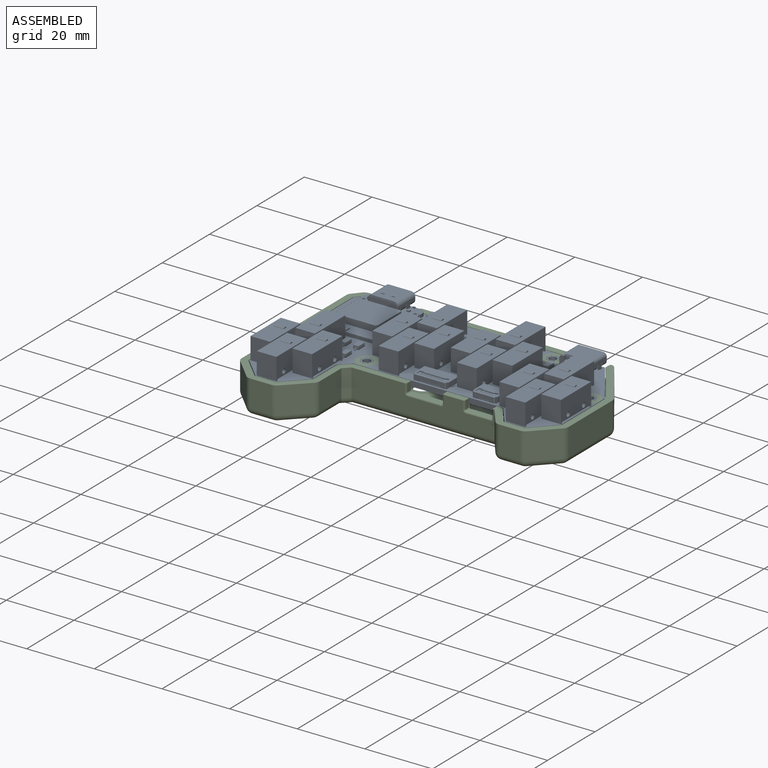
[diagram: assembled view]
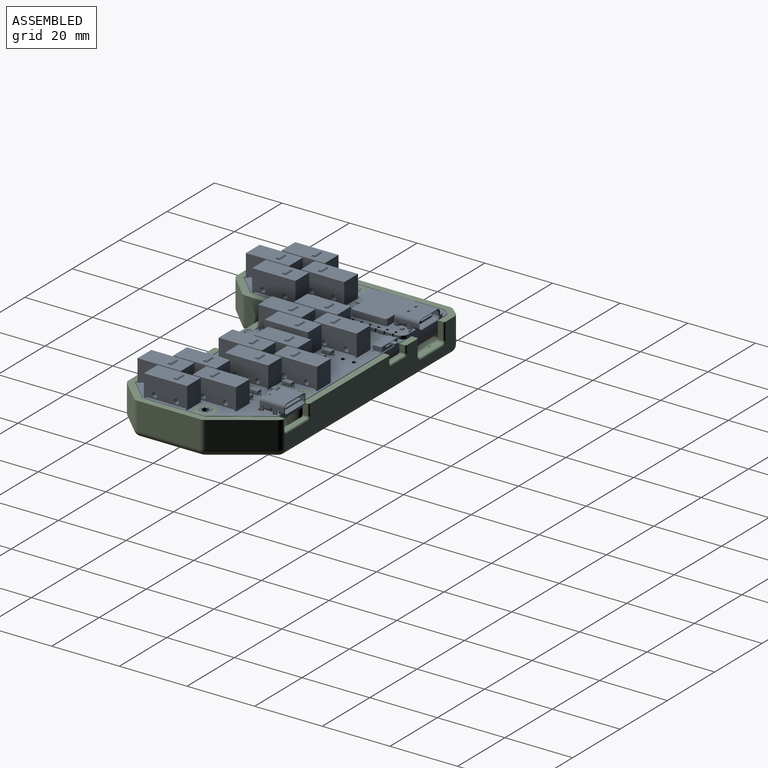
[diagram: assembled view, second angle]
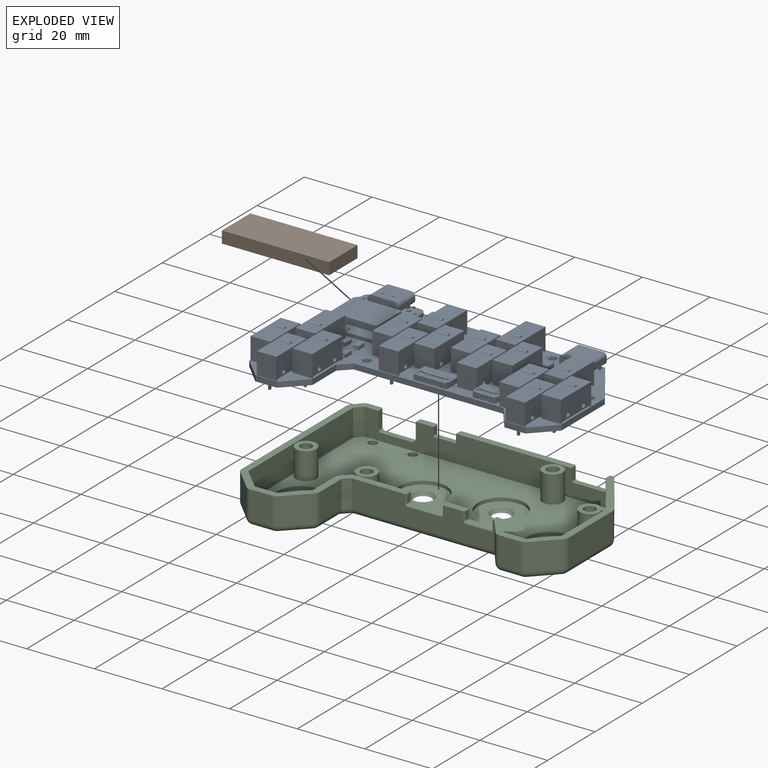
[diagram: exploded view]
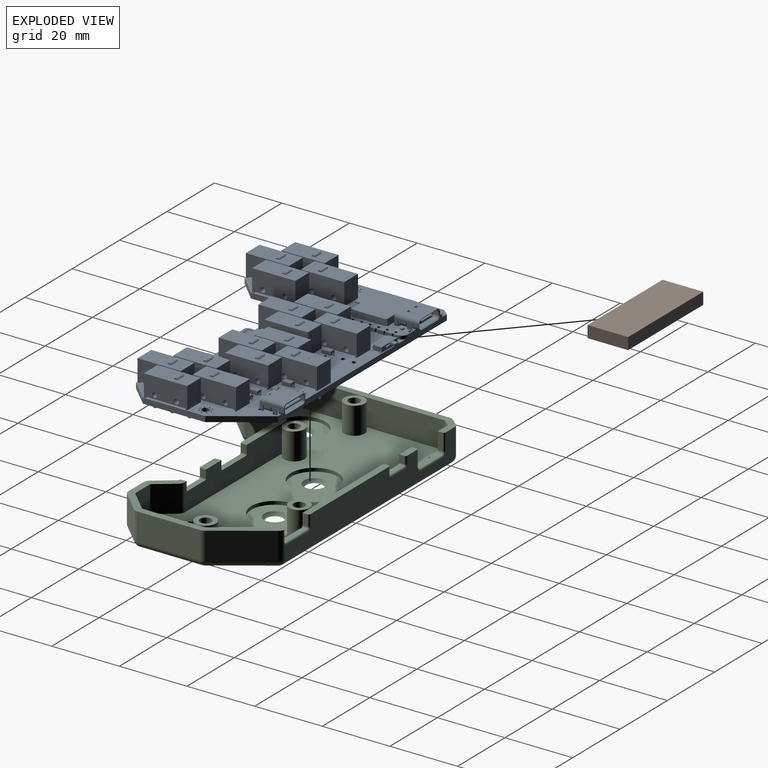
[diagram: exploded view, second angle]
FCSTD DOCUMENT  (FreeCAD 1.0RUnknown)
Label: left
License: All rights reserved
LicenseURL: https://en.wikipedia.org/wiki/All_rights_reserved
objects: Part::Feature×134, App::Link×39, App::Part×25, Sketcher::SketchObject×11, PartDesign::Pad×5, PartDesign::Pocket×5, PartDesign::SubShapeBinder×3, PartDesign::Body×3, PartDesign::Fillet×3, PartDesign::Thickness×2, PartDesign::CoordinateSystem×1, Part::Mirroring×1, PartDesign::Chamfer×1
note: 212 computed .brp shape members not serialized (recipe doc carries the construction recipe); baked Part::Feature solids carry a one-line shape summary decoded from their .brp
EXTERNAL_REF file=vars.FCStd obj=VarSet
EXTERNAL_REF file=caps.FCStd obj=Body002

FEATURE [PartDesign::CoordinateSystem] Local_CS_f9e4
  AttacherType = Attacher::AttachEngine3D
  MapMode = 2
FEATURE [Part::Feature] Pcb_f9e4
  Placement = pos=(-55.2,21.7499,0) rot=(0,0,1;0rad)
  shape: bbox 83.06 x 52.25 x 1.6 mm, 140 faces (baked)
FEATURE [Sketcher::SketchObject] PCB_Sketch_f9e4
  ArcFitTolerance = 1e-06
  FullyConstrained = false
  MakeInternals = false
  sketch-geometry (14):
    g0: LineSegment StartX=1.7 StartY=0 StartZ=0 EndX=0 EndY=-1.95 EndZ=0
    g1: LineSegment StartX=83.06 StartY=-14.5 StartZ=0 EndX=83.06 EndY=-32.9 EndZ=0
    g2: LineSegment StartX=18.68 StartY=-36 StartZ=0 EndX=18.68 EndY=-46.05 EndZ=0
    g3: LineSegment StartX=70.7 StartY=-39.25 StartZ=0 EndX=66.01 EndY=-33 EndZ=0
    g4: LineSegment StartX=1.7 StartY=0 StartZ=0 EndX=73 EndY=0 EndZ=0
    g5: LineSegment StartX=83.06 StartY=-14.5 StartZ=0 EndX=73 EndY=0 EndZ=0
    g6: LineSegment StartX=18.68 StartY=-46.05 StartZ=0 EndX=12.5 EndY=-52.2501 EndZ=0
    g7: LineSegment StartX=76.9 StartY=-39.25 StartZ=0 EndX=70.7 EndY=-39.25 EndZ=0
    g8: LineSegment StartX=83.06 StartY=-32.9 StartZ=0 EndX=76.9 EndY=-39.25 EndZ=0
    g9: LineSegment StartX=66.01 StartY=-33 StartZ=0 EndX=21.75 EndY=-33 EndZ=0
    g10: LineSegment StartX=6.15 StartY=-52.25 StartZ=0 EndX=12.5 EndY=-52.2501 EndZ=0
    g11: LineSegment StartX=21.75 StartY=-33 StartZ=0 EndX=18.68 EndY=-36 EndZ=0
    g12: LineSegment StartX=6.15 StartY=-52.25 StartZ=0 EndX=0 EndY=-46.05 EndZ=0
    g13: LineSegment StartX=0 StartY=-46.05 StartZ=0 EndX=0 EndY=-1.95 EndZ=0
  constraints (14):
    c: Coincident(g12,g13)
    c: Coincident(g0,g13)
    c: Coincident(g0,g4)
    c: Coincident(g10,g12)
    c: Coincident(g6,g10)
    c: Coincident(g2,g6)
    c: Coincident(g2,g11)
    c: Coincident(g9,g11)
    c: Coincident(g3,g9)
    c: Coincident(g3,g7)
    c: Coincident(g4,g5)
    c: Coincident(g7,g8)
    c: Coincident(g1,g8)
    c: Coincident(g1,g5)
FEATURE [App::Part] Board_Geoms_f9e4
  Group = -> [Pcb_f9e4,PCB_Sketch_f9e4]
  Origin = -> Origin
FEATURE [Part::Feature] Part__Feature  label="USB-C_SMD-TYPE-C-31-M-12"
  shape: bbox 9.105 x 7.9 x 4.215 mm, 588 faces (baked)
FEATURE [Part::Feature] Part__Feature001  label="USB-C_SMD-TYPE-C-31-M-013"
  shape: bbox 0.1609 x 0.3051 x 0.001 mm, 8 faces (baked)
FEATURE [Part::Feature] Part__Feature002  label="USB-C_SMD-TYPE-C-31-M-014"
  shape: bbox 0.2284 x 0.3154 x 0.001 mm, 16 faces (baked)
FEATURE [Part::Feature] Part__Feature003  label="USB-C_SMD-TYPE-C-31-M-015"
  shape: bbox 0.1641 x 0.3051 x 0.001 mm, 14 faces (baked)
FEATURE [Part::Feature] Part__Feature004  label="USB-C_SMD-TYPE-C-31-M-016"
  shape: bbox 0.2484 x 0.3051 x 0.001 mm, 16 faces (baked)
FEATURE [Part::Feature] Part__Feature005  label="USB-C_SMD-TYPE-C-31-M-017"
  shape: bbox 0.2745 x 0.3051 x 0.001 mm, 16 faces (baked)
FEATURE [Part::Feature] Part__Feature006  label="USB-C_SMD-TYPE-C-31-M-018"
  shape: bbox 0.1641 x 0.3051 x 0.001 mm, 14 faces (baked)
FEATURE [Part::Feature] Part__Feature007  label="USB-C_SMD-TYPE-C-31-M-019"
  shape: bbox 0.1751 x 0.228 x 0.001 mm, 24 faces (baked)
FEATURE [Part::Feature] Part__Feature008  label="USB-C_SMD-TYPE-C-31-M-020"
  shape: bbox 0.1472 x 0.228 x 0.001 mm, 23 faces (baked)
FEATURE [Part::Feature] Part__Feature009  label="USB-C_SMD-TYPE-C-31-M-021"
  shape: bbox 0.2091 x 0.3205 x 0.001 mm, 17 faces (baked)
FEATURE [Part::Feature] Part__Feature010  label="USB-C_SMD-TYPE-C-31-M-022"
  shape: bbox 0.1641 x 0.3051 x 0.001 mm, 14 faces (baked)
FEATURE [Part::Feature] Part__Feature011  label="USB-C_SMD-TYPE-C-31-M-023"
  shape: bbox 0.2484 x 0.3051 x 0.001 mm, 16 faces (baked)
FEATURE [Part::Feature] Part__Feature012  label="USB-C_SMD-TYPE-C-31-M-024"
  shape: bbox 0.2745 x 0.3051 x 0.001 mm, 16 faces (baked)
FEATURE [Part::Feature] Part__Feature013  label="USB-C_SMD-TYPE-C-31-M-025"
  shape: bbox 1.384 x 1.015 x 0.001 mm, 37 faces (baked)
FEATURE [App::Part] USB_C_SMD_TYPE_C_31_M_12  label="USBC1_USB-C_SMD-TYPE-C-31-M-026_e0dc5af106a7"
  Group = -> [Part__Feature,Part__Feature001,Part__Feature002,Part__Feature003,Part__Feature004,Part__Feature005,Part__Feature006,Part__Feature007,Part__Feature008,Part__Feature009,Part__Feature010,Part__Feature011,Part__Feature012,Part__Feature013]
  Origin = -> Origin008
  Placement = pos=(67.97,-1.13,0) rot=(0,0,1;0rad)
FEATURE [Part::Feature] Part__Feature014  label="FPC-SMD_P0.50-WS-6P"
  shape: bbox 0.2 x 4.857 x 1.76 mm, 23 faces (baked)
FEATURE [Part::Feature] Part__Feature015  label="FPC-SMD_P0.50-WS-6P001"
  shape: bbox 0.2 x 4.857 x 1.76 mm, 23 faces (baked)
FEATURE [Part::Feature] Part__Feature016  label="FPC-SMD_P0.50-WS-6P002"
  shape: bbox 0.2 x 4.857 x 1.76 mm, 23 faces (baked)
FEATURE [Part::Feature] Part__Feature017  label="FPC-SMD_P0.50-WS-6P003"
  shape: bbox 0.2 x 4.857 x 1.76 mm, 23 faces (baked)
FEATURE [Part::Feature] Part__Feature018  label="FPC-SMD_P0.50-WS-6P004"
  shape: bbox 0.2 x 4.857 x 1.76 mm, 23 faces (baked)
FEATURE [Part::Feature] Part__Feature019  label="FPC-SMD_P0.50-WS-6P005"
  shape: bbox 6.6 x 2.34 x 1.797 mm, 63 faces (baked)
FEATURE [Part::Feature] Part__Feature020  label="FPC-SMD_P0.50-WS-6P006"
  shape: bbox 0.2 x 4.857 x 1.76 mm, 23 faces (baked)
FEATURE [Part::Feature] Part__Feature021  label="FPC-SMD_P0.50-WS-6P007"
  shape: bbox 7.201 x 4.631 x 2.001 mm, 196 faces (baked)
FEATURE [Part::Feature] Part__Feature022  label="FPC-SMD_P0.50-WS-6P008"
  shape: bbox 0.1074 x 0.2041 x 0.001 mm, 8 faces (baked)
FEATURE [Part::Feature] Part__Feature023  label="FPC-SMD_P0.50-WS-6P009"
  shape: bbox 0.1532 x 0.2106 x 0.001 mm, 16 faces (baked)
FEATURE [Part::Feature] Part__Feature024  label="FPC-SMD_P0.50-WS-6P010"
  shape: bbox 0.1095 x 0.2041 x 0.001 mm, 14 faces (baked)
FEATURE [Part::Feature] Part__Feature025  label="FPC-SMD_P0.50-WS-6P011"
  shape: bbox 0.1665 x 0.204 x 0.001 mm, 16 faces (baked)
FEATURE [Part::Feature] Part__Feature026  label="FPC-SMD_P0.50-WS-6P012"
  shape: bbox 0.183 x 0.2041 x 0.001 mm, 16 faces (baked)
FEATURE [Part::Feature] Part__Feature027  label="FPC-SMD_P0.50-WS-6P013"
  shape: bbox 0.1095 x 0.2041 x 0.001 mm, 14 faces (baked)
FEATURE [Part::Feature] Part__Feature028  label="FPC-SMD_P0.50-WS-6P014"
  shape: bbox 0.1175 x 0.1522 x 0.001 mm, 24 faces (baked)
FEATURE [Part::Feature] Part__Feature029  label="FPC-SMD_P0.50-WS-6P015"
  shape: bbox 0.09841 x 0.1521 x 0.001 mm, 23 faces (baked)
FEATURE [Part::Feature] Part__Feature030  label="FPC-SMD_P0.50-WS-6P016"
  shape: bbox 0.1394 x 0.214 x 0.001 mm, 17 faces (baked)
FEATURE [Part::Feature] Part__Feature031  label="FPC-SMD_P0.50-WS-6P017"
  shape: bbox 0.1095 x 0.2041 x 0.001 mm, 14 faces (baked)
FEATURE [Part::Feature] Part__Feature032  label="FPC-SMD_P0.50-WS-6P018"
  shape: bbox 0.1665 x 0.204 x 0.001 mm, 16 faces (baked)
FEATURE [Part::Feature] Part__Feature033  label="FPC-SMD_P0.50-WS-6P019"
  shape: bbox 0.183 x 0.2041 x 0.001 mm, 16 faces (baked)
FEATURE [Part::Feature] Part__Feature034  label="FPC-SMD_P0.50-WS-6P020"
  shape: bbox 0.9227 x 0.6764 x 0.001 mm, 37 faces (baked)
FEATURE [App::Part] FPC_SMD_P0_50_WS_6P  label="FPC2_FPC-SMD_P0.50-WS-6P021_8905dd4ff4a1"
  Group = -> [Part__Feature014,Part__Feature015,Part__Feature016,Part__Feature017,Part__Feature018,Part__Feature019,Part__Feature020,Part__Feature021,Part__Feature022,Part__Feature023,Part__Feature024,Part__Feature025,Part__Feature026,Part__Feature027,Part__Feature028,Part__Feature029,Part__Feature030,Part__Feature031,Part__Feature032,Part__Feature033,Part__Feature034]
  Origin = -> Origin009
  Placement = pos=(60.13,-29.8775,0) rot=(0,0,1;0rad)
FEATURE [Part::Feature] Shape  label="D7_SOD-123_L2.8-W1.8-LS3.7-RD-1_0b30e51cc506"
  Placement = pos=(23.6,-10.6,0) rot=(0,0,-1;1.5708rad)
  shape: bbox 1.65 x 3.682 x 1.2 mm, 133 faces (baked)
FEATURE [App::Link] D7_SOD_123_L2_8_W1_8_LS3_7_RD_1_0b30e51cc506_ln_  label="D6_SOD-123_L2.8-W1.8-LS3.7-RD-1_5df85a4fa5a6"
  LinkPlacement = pos=(40.1,-10.61,0) rot=(0,0,-1;1.5708rad)
  LinkedObject = -> Shape
  Placement = pos=(40.1,-10.61,0) rot=(0,0,-1;1.5708rad)
FEATURE [App::Link] D7_SOD_123_L2_8_W1_8_LS3_7_RD_1_0b30e51cc506_ln_001  label="D8_SOD-123_L2.8-W1.8-LS3.7-RD-1_be3bf2c5e445"
  LinkPlacement = pos=(36.7,-10.6,0) rot=(0,0,-1;1.5708rad)
  LinkedObject = -> Shape
  Placement = pos=(36.7,-10.6,0) rot=(0,0,-1;1.5708rad)
FEATURE [App::Link] D7_SOD_123_L2_8_W1_8_LS3_7_RD_1_0b30e51cc506_ln_002  label="D13_SOD-123_L2.8-W1.8-LS3.7-RD-1_55d8cb2b9d68"
  LinkPlacement = pos=(68.9,-12.09,0) rot=(0,0,-1;1.5708rad)
  LinkedObject = -> Shape
  Placement = pos=(68.9,-12.09,0) rot=(0,0,-1;1.5708rad)
FEATURE [App::Link] D7_SOD_123_L2_8_W1_8_LS3_7_RD_1_0b30e51cc506_ln_003  label="D12_SOD-123_L2.8-W1.8-LS3.7-RD-1_d7b6e1caf04d"
  LinkPlacement = pos=(57.1,-8.09,0) rot=(0,0,-1;1.5708rad)
  LinkedObject = -> Shape
  Placement = pos=(57.1,-8.09,0) rot=(0,0,-1;1.5708rad)
FEATURE [App::Link] D7_SOD_123_L2_8_W1_8_LS3_7_RD_1_0b30e51cc506_ln_004  label="D16_SOD-123_L2.8-W1.8-LS3.7-RD-1_6d542f04e3e1"
  LinkPlacement = pos=(65.5,-17.4,0) rot=(0,0,-1;1.5708rad)
  LinkedObject = -> Shape
  Placement = pos=(65.5,-17.4,0) rot=(0,0,-1;1.5708rad)
FEATURE [App::Link] D7_SOD_123_L2_8_W1_8_LS3_7_RD_1_0b30e51cc506_ln_005  label="D15_SOD-123_L2.8-W1.8-LS3.7-RD-1_e549b8c87c9b"
  LinkPlacement = pos=(69,-17.4,0) rot=(0,0,-1;1.5708rad)
  LinkedObject = -> Shape
  Placement = pos=(69,-17.4,0) rot=(0,0,-1;1.5708rad)
FEATURE [App::Link] D7_SOD_123_L2_8_W1_8_LS3_7_RD_1_0b30e51cc506_ln_006  label="D5_SOD-123_L2.8-W1.8-LS3.7-RD-1_6783135f27c7"
  LinkPlacement = pos=(26.6,-10.61,0) rot=(0,0,-1;1.5708rad)
  LinkedObject = -> Shape
  Placement = pos=(26.6,-10.61,0) rot=(0,0,-1;1.5708rad)
FEATURE [App::Link] D7_SOD_123_L2_8_W1_8_LS3_7_RD_1_0b30e51cc506_ln_007  label="D2_SOD-123_L2.8-W1.8-LS3.7-RD-1_53f32d5838c0"
  LinkPlacement = pos=(13.9,-30.6,0) rot=(0,0,-1;1.5708rad)
  LinkedObject = -> Shape
  Placement = pos=(13.9,-30.6,0) rot=(0,0,-1;1.5708rad)
FEATURE [Part::Feature] Part__Feature035  label="D2FC_F_7N_60M_BASE"
  shape: bbox 12.8 x 10 x 5.8 mm, 71 faces (baked)
FEATURE [Part::Feature] Part__Feature036  label="D2FC_F_7N_60M_BUTTON"
  Placement = pos=(-5.2,5.4,2.9) rot=(0,0,1;0rad)
  shape: bbox 1.2 x 2 x 2.9 mm, 6 faces (baked)
FEATURE [App::Part] D2FC_F_7N_60M  label="SW3_D2FC_F_7N_60M_9c058da7b9e1"
  Group = -> [Part__Feature035,Part__Feature036]
  Origin = -> Origin010
  Placement = pos=(49.95,-3.69,1.49) rot=(0.57735,0.57735,0.57735;2.0944rad)
FEATURE [App::Link] SW3_D2FC_F_7N_60M_9c058da7b9e1_ln_  label="SW3_D2FC_F_7N_60M_9c058da7b9e1[2]"
  LinkPlacement = pos=(49.55,-20.29,1.49) rot=(0.57735,-0.57735,-0.57735;2.0944rad)
  LinkedObject = -> D2FC_F_7N_60M
  Placement = pos=(49.55,-20.29,1.49) rot=(0.57735,-0.57735,-0.57735;2.0944rad)
FEATURE [App::Link] SW3_D2FC_F_7N_60M_9c058da7b9e1_ln_001  label="SW3_D2FC_F_7N_60M_9c058da7b9e1[3]"
  LinkPlacement = pos=(55.75,-26.49,1.49) rot=(0.57735,-0.57735,-0.57735;2.0944rad)
  LinkedObject = -> D2FC_F_7N_60M
  Placement = pos=(55.75,-26.49,1.49) rot=(0.57735,-0.57735,-0.57735;2.0944rad)
FEATURE [App::Link] SW3_D2FC_F_7N_60M_9c058da7b9e1_ln_002  label="SW3_D2FC_F_7N_60M_9c058da7b9e1[4]"
  LinkPlacement = pos=(61.95,-20.29,1.49) rot=(0.57735,-0.57735,-0.57735;2.0944rad)
  LinkedObject = -> D2FC_F_7N_60M
  Placement = pos=(61.95,-20.29,1.49) rot=(0.57735,-0.57735,-0.57735;2.0944rad)
FEATURE [App::Link] D7_SOD_123_L2_8_W1_8_LS3_7_RD_1_0b30e51cc506_ln_008  label="D4_SOD-123_L2.8-W1.8-LS3.7-RD-1_39acea743c22"
  LinkPlacement = pos=(17.7,-30.5,0) rot=(0,0,-1;1.5708rad)
  LinkedObject = -> Shape
  Placement = pos=(17.7,-30.5,0) rot=(0,0,-1;1.5708rad)
FEATURE [Part::Feature] Part__Feature037  label="FPC-SMD_P0.50-WS-12P"
  shape: bbox 0.2 x 4.857 x 1.76 mm, 23 faces (baked)
FEATURE [Part::Feature] Part__Feature038  label="FPC-SMD_P0.50-WS-12P001"
  shape: bbox 0.2 x 4.857 x 1.76 mm, 23 faces (baked)
FEATURE [Part::Feature] Part__Feature039  label="FPC-SMD_P0.50-WS-12P002"
  shape: bbox 0.2 x 4.857 x 1.76 mm, 23 faces (baked)
FEATURE [Part::Feature] Part__Feature040  label="FPC-SMD_P0.50-WS-12P003"
  shape: bbox 0.2 x 4.857 x 1.76 mm, 23 faces (baked)
FEATURE [Part::Feature] Part__Feature041  label="FPC-SMD_P0.50-WS-12P004"
  shape: bbox 0.2 x 4.857 x 1.76 mm, 23 faces (baked)
FEATURE [Part::Feature] Part__Feature042  label="FPC-SMD_P0.50-WS-12P005"
  shape: bbox 0.2 x 4.857 x 1.76 mm, 23 faces (baked)
FEATURE [Part::Feature] Part__Feature043  label="FPC-SMD_P0.50-WS-12P006"
  shape: bbox 0.2 x 4.857 x 1.76 mm, 23 faces (baked)
FEATURE [Part::Feature] Part__Feature044  label="FPC-SMD_P0.50-WS-12P007"
  shape: bbox 0.2 x 4.857 x 1.76 mm, 23 faces (baked)
FEATURE [Part::Feature] Part__Feature045  label="FPC-SMD_P0.50-WS-12P008"
  shape: bbox 0.2 x 4.857 x 1.76 mm, 23 faces (baked)
FEATURE [Part::Feature] Part__Feature046  label="FPC-SMD_P0.50-WS-12P009"
  shape: bbox 0.2 x 4.857 x 1.76 mm, 23 faces (baked)
FEATURE [Part::Feature] Part__Feature047  label="FPC-SMD_P0.50-WS-12P010"
  shape: bbox 0.2 x 4.857 x 1.76 mm, 23 faces (baked)
FEATURE [Part::Feature] Part__Feature048  label="FPC-SMD_P0.50-WS-12P011"
  shape: bbox 9.6 x 2.34 x 1.797 mm, 93 faces (baked)
FEATURE [Part::Feature] Part__Feature049  label="FPC-SMD_P0.50-WS-12P012"
  shape: bbox 0.2 x 4.857 x 1.76 mm, 23 faces (baked)
FEATURE [Part::Feature] Part__Feature050  label="FPC-SMD_P0.50-WS-12P013"
  shape: bbox 10.2 x 4.631 x 2.001 mm, 238 faces (baked)
FEATURE [Part::Feature] Part__Feature051  label="FPC-SMD_P0.50-WS-12P014"
  shape: bbox 0.1074 x 0.2041 x 0.001 mm, 8 faces (baked)
FEATURE [Part::Feature] Part__Feature052  label="FPC-SMD_P0.50-WS-12P015"
  shape: bbox 0.1532 x 0.2106 x 0.001 mm, 16 faces (baked)
FEATURE [Part::Feature] Part__Feature053  label="FPC-SMD_P0.50-WS-12P016"
  shape: bbox 0.1095 x 0.2041 x 0.001 mm, 14 faces (baked)
FEATURE [Part::Feature] Part__Feature054  label="FPC-SMD_P0.50-WS-12P017"
  shape: bbox 0.1665 x 0.204 x 0.001 mm, 16 faces (baked)
FEATURE [Part::Feature] Part__Feature055  label="FPC-SMD_P0.50-WS-12P018"
  shape: bbox 0.183 x 0.2041 x 0.001 mm, 16 faces (baked)
FEATURE [Part::Feature] Part__Feature056  label="FPC-SMD_P0.50-WS-12P019"
  shape: bbox 0.1095 x 0.2041 x 0.001 mm, 14 faces (baked)
FEATURE [Part::Feature] Part__Feature057  label="FPC-SMD_P0.50-WS-12P020"
  shape: bbox 0.1175 x 0.1522 x 0.001 mm, 24 faces (baked)
FEATURE [Part::Feature] Part__Feature058  label="FPC-SMD_P0.50-WS-12P021"
  shape: bbox 0.09841 x 0.1521 x 0.001 mm, 23 faces (baked)
FEATURE [Part::Feature] Part__Feature059  label="FPC-SMD_P0.50-WS-12P022"
  shape: bbox 0.1394 x 0.214 x 0.001 mm, 17 faces (baked)
FEATURE [Part::Feature] Part__Feature060  label="FPC-SMD_P0.50-WS-12P023"
  shape: bbox 0.1095 x 0.2041 x 0.001 mm, 14 faces (baked)
FEATURE [Part::Feature] Part__Feature061  label="FPC-SMD_P0.50-WS-12P024"
  shape: bbox 0.1665 x 0.204 x 0.001 mm, 16 faces (baked)
FEATURE [Part::Feature] Part__Feature062  label="FPC-SMD_P0.50-WS-12P025"
  shape: bbox 0.183 x 0.2041 x 0.001 mm, 16 faces (baked)
FEATURE [Part::Feature] Part__Feature063  label="FPC-SMD_P0.50-WS-12P026"
  shape: bbox 0.9227 x 0.6764 x 0.001 mm, 37 faces (baked)
FEATURE [App::Part] FPC_SMD_P0_50_WS_12P  label="FPC1_FPC-SMD_P0.50-WS-12P027_7cb5e7110caa"
  Group = -> [Part__Feature037,Part__Feature038,Part__Feature039,Part__Feature040,Part__Feature041,Part__Feature042,Part__Feature043,Part__Feature044,Part__Feature045,Part__Feature046,Part__Feature047,Part__Feature048,Part__Feature049,Part__Feature050,Part__Feature051,Part__Feature052,Part__Feature053,Part__Feature054,Part__Feature055,Part__Feature056,Part__Feature057,Part__Feature058,Part__Feature059,+4 more]
  Origin = -> Origin011
  Placement = pos=(44.15,-29.89,0) rot=(0,0,1;0rad)
FEATURE [App::Link] D7_SOD_123_L2_8_W1_8_LS3_7_RD_1_0b30e51cc506_ln_009  label="D10_SOD-123_L2.8-W1.8-LS3.7-RD-1_ecb16c996385"
  LinkPlacement = pos=(61.9,-8.1,0) rot=(0,0,-1;1.5708rad)
  LinkedObject = -> Shape
  Placement = pos=(61.9,-8.1,0) rot=(0,0,-1;1.5708rad)
FEATURE [App::Link] SW3_D2FC_F_7N_60M_9c058da7b9e1_ln_003  label="SW4_D2FC_F_7N_60M_67000360c475"
  LinkPlacement = pos=(70.85,-13.02,1.49) rot=(0.57735,0.57735,0.57735;2.0944rad)
  LinkedObject = -> D2FC_F_7N_60M
  Placement = pos=(70.85,-13.02,1.49) rot=(0.57735,0.57735,0.57735;2.0944rad)
FEATURE [App::Link] SW3_D2FC_F_7N_60M_9c058da7b9e1_ln_004  label="SW4_D2FC_F_7N_60M_67000360c475[2]"
  LinkPlacement = pos=(70.45,-29.62,1.49) rot=(0.57735,-0.57735,-0.57735;2.0944rad)
  LinkedObject = -> D2FC_F_7N_60M
  Placement = pos=(70.45,-29.62,1.49) rot=(0.57735,-0.57735,-0.57735;2.0944rad)
FEATURE [App::Link] SW3_D2FC_F_7N_60M_9c058da7b9e1_ln_005  label="SW4_D2FC_F_7N_60M_67000360c475[3]"
  LinkPlacement = pos=(76.65,-35.82,1.49) rot=(0.57735,-0.57735,-0.57735;2.0944rad)
  LinkedObject = -> D2FC_F_7N_60M
  Placement = pos=(76.65,-35.82,1.49) rot=(0.57735,-0.57735,-0.57735;2.0944rad)
FEATURE [App::Link] SW3_D2FC_F_7N_60M_9c058da7b9e1_ln_006  label="SW4_D2FC_F_7N_60M_67000360c475[4]"
  LinkPlacement = pos=(82.85,-29.62,1.49) rot=(0.57735,-0.57735,-0.57735;2.0944rad)
  LinkedObject = -> D2FC_F_7N_60M
  Placement = pos=(82.85,-29.62,1.49) rot=(0.57735,-0.57735,-0.57735;2.0944rad)
FEATURE [App::Link] D7_SOD_123_L2_8_W1_8_LS3_7_RD_1_0b30e51cc506_ln_010  label="D9_SOD-123_L2.8-W1.8-LS3.7-RD-1_2b660ecae542"
  LinkPlacement = pos=(47.9,-7.79,0) rot=(0,0,-1;1.5708rad)
  LinkedObject = -> Shape
  Placement = pos=(47.9,-7.79,0) rot=(0,0,-1;1.5708rad)
FEATURE [App::Link] D7_SOD_123_L2_8_W1_8_LS3_7_RD_1_0b30e51cc506_ln_011  label="D3_SOD-123_L2.8-W1.8-LS3.7-RD-1_110e670bbce1"
  LinkPlacement = pos=(17.7,-25,0) rot=(0,0,-1;1.5708rad)
  LinkedObject = -> Shape
  Placement = pos=(17.7,-25,0) rot=(0,0,-1;1.5708rad)
FEATURE [App::Link] D7_SOD_123_L2_8_W1_8_LS3_7_RD_1_0b30e51cc506_ln_012  label="D1_SOD-123_L2.8-W1.8-LS3.7-RD-1_5beba6bd60fd"
  LinkPlacement = pos=(13.9,-25.1,0) rot=(0,0,-1;1.5708rad)
  LinkedObject = -> Shape
  Placement = pos=(13.9,-25.1,0) rot=(0,0,-1;1.5708rad)
FEATURE [App::Link] SW3_D2FC_F_7N_60M_9c058da7b9e1_ln_007  label="SW2_D2FC_F_7N_60M_614f7c683e30"
  LinkPlacement = pos=(28.8937,-6.69,1.49) rot=(0.57735,0.57735,0.57735;2.0944rad)
  LinkedObject = -> D2FC_F_7N_60M
  Placement = pos=(28.8937,-6.69,1.49) rot=(0.57735,0.57735,0.57735;2.0944rad)
FEATURE [App::Link] SW3_D2FC_F_7N_60M_9c058da7b9e1_ln_008  label="SW2_D2FC_F_7N_60M_614f7c683e30[2]"
  LinkPlacement = pos=(28.4937,-23.29,1.49) rot=(0.57735,-0.57735,-0.57735;2.0944rad)
  LinkedObject = -> D2FC_F_7N_60M
  Placement = pos=(28.4937,-23.29,1.49) rot=(0.57735,-0.57735,-0.57735;2.0944rad)
FEATURE [App::Link] SW3_D2FC_F_7N_60M_9c058da7b9e1_ln_009  label="SW2_D2FC_F_7N_60M_614f7c683e30[3]"
  LinkPlacement = pos=(34.6937,-29.49,1.49) rot=(0.57735,-0.57735,-0.57735;2.0944rad)
  LinkedObject = -> D2FC_F_7N_60M
  Placement = pos=(34.6937,-29.49,1.49) rot=(0.57735,-0.57735,-0.57735;2.0944rad)
FEATURE [App::Link] SW3_D2FC_F_7N_60M_9c058da7b9e1_ln_010  label="SW2_D2FC_F_7N_60M_614f7c683e30[4]"
  LinkPlacement = pos=(40.8937,-23.29,1.49) rot=(0.57735,-0.57735,-0.57735;2.0944rad)
  LinkedObject = -> D2FC_F_7N_60M
  Placement = pos=(40.8937,-23.29,1.49) rot=(0.57735,-0.57735,-0.57735;2.0944rad)
FEATURE [App::Link] SW3_D2FC_F_7N_60M_9c058da7b9e1_ln_011  label="SW1_D2FC_F_7N_60M_b9446c171e2b"
  LinkPlacement = pos=(6.45,-26.1,1.49) rot=(0.57735,0.57735,0.57735;2.0944rad)
  LinkedObject = -> D2FC_F_7N_60M
  Placement = pos=(6.45,-26.1,1.49) rot=(0.57735,0.57735,0.57735;2.0944rad)
FEATURE [App::Link] SW3_D2FC_F_7N_60M_9c058da7b9e1_ln_012  label="SW1_D2FC_F_7N_60M_b9446c171e2b[2]"
  LinkPlacement = pos=(6.05,-42.7,1.49) rot=(0.57735,-0.57735,-0.57735;2.0944rad)
  LinkedObject = -> D2FC_F_7N_60M
  Placement = pos=(6.05,-42.7,1.49) rot=(0.57735,-0.57735,-0.57735;2.0944rad)
FEATURE [App::Link] SW3_D2FC_F_7N_60M_9c058da7b9e1_ln_013  label="SW1_D2FC_F_7N_60M_b9446c171e2b[3]"
  LinkPlacement = pos=(12.25,-48.9,1.49) rot=(0.57735,-0.57735,-0.57735;2.0944rad)
  LinkedObject = -> D2FC_F_7N_60M
  Placement = pos=(12.25,-48.9,1.49) rot=(0.57735,-0.57735,-0.57735;2.0944rad)
FEATURE [App::Link] SW3_D2FC_F_7N_60M_9c058da7b9e1_ln_014  label="SW1_D2FC_F_7N_60M_b9446c171e2b[4]"
  LinkPlacement = pos=(18.45,-42.7,1.49) rot=(0.57735,-0.57735,-0.57735;2.0944rad)
  LinkedObject = -> D2FC_F_7N_60M
  Placement = pos=(18.45,-42.7,1.49) rot=(0.57735,-0.57735,-0.57735;2.0944rad)
FEATURE [App::Link] D7_SOD_123_L2_8_W1_8_LS3_7_RD_1_0b30e51cc506_ln_013  label="D14_SOD-123_L2.8-W1.8-LS3.7-RD-1_9b2227cee93c"
  LinkPlacement = pos=(65.5,-12.09,0) rot=(0,0,-1;1.5708rad)
  LinkedObject = -> Shape
  Placement = pos=(65.5,-12.09,0) rot=(0,0,-1;1.5708rad)
FEATURE [App::Link] D7_SOD_123_L2_8_W1_8_LS3_7_RD_1_0b30e51cc506_ln_014  label="D11_SOD-123_L2.8-W1.8-LS3.7-RD-1_d92cc223f8a2"
  LinkPlacement = pos=(44.8,-7.79,0) rot=(0,0,-1;1.5708rad)
  LinkedObject = -> Shape
  Placement = pos=(44.8,-7.79,0) rot=(0,0,-1;1.5708rad)
FEATURE [Part::Feature] Part__Feature064  label="BOSS-EXTRUDE14_8_"
  Placement = pos=(-3.0192,1.09628,5.395) rot=(0,0,1;0rad)
  shape: bbox 0.6 x 1 x 0.3 mm, 6 faces (baked)
FEATURE [Part::Feature] Part__Feature065  label="BOSS-EXTRUDE7_4_"
  Placement = pos=(-3.0192,1.09628,5.395) rot=(0,0,1;0rad)
  shape: bbox 0.3 x 3.784 x 0.75 mm, 6 faces (baked)
FEATURE [Part::Feature] Part__Feature066  label="BOSS-EXTRUDE7_3_"
  Placement = pos=(-3.0192,1.09628,5.395) rot=(0,0,1;0rad)
  shape: bbox 0.3 x 3.784 x 0.75 mm, 6 faces (baked)
FEATURE [Part::Feature] Part__Feature067  label="BOSS-EXTRUDE14_4_"
  Placement = pos=(-3.0192,1.09628,5.395) rot=(0,0,1;0rad)
  shape: bbox 0.3 x 1 x 0.3 mm, 6 faces (baked)
FEATURE [Part::Feature] Part__Feature068  label="BOSS-EXTRUDE14_2_"
  Placement = pos=(-3.0192,1.09628,5.395) rot=(0,0,1;0rad)
  shape: bbox 0.6 x 1 x 0.3 mm, 6 faces (baked)
FEATURE [Part::Feature] Part__Feature069  label="BOSS-EXTRUDE14_11_"
  Placement = pos=(-3.0192,1.09628,5.395) rot=(0,0,1;0rad)
  shape: bbox 0.3 x 1 x 0.3 mm, 6 faces (baked)
FEATURE [Part::Feature] Part__Feature070  label="BOSS-EXTRUDE7_7_"
  Placement = pos=(-3.0192,1.09628,5.395) rot=(0,0,1;0rad)
  shape: bbox 0.3 x 3.784 x 0.75 mm, 6 faces (baked)
FEATURE [Part::Feature] Part__Feature071  label="BOSS-EXTRUDE14_9_"
  Placement = pos=(-3.0192,1.09628,5.395) rot=(0,0,1;0rad)
  shape: bbox 0.3 x 1 x 0.3 mm, 6 faces (baked)
FEATURE [Part::Feature] Part__Feature072  label="BOSS-EXTRUDE14_3_"
  Placement = pos=(-3.0192,1.09628,5.395) rot=(0,0,1;0rad)
  shape: bbox 0.3 x 1 x 0.3 mm, 6 faces (baked)
FEATURE [Part::Feature] Part__Feature073  label="BOSS-EXTRUDE14_7_"
  Placement = pos=(-3.0192,1.09628,5.395) rot=(0,0,1;0rad)
  shape: bbox 0.6 x 1 x 0.3 mm, 6 faces (baked)
FEATURE [Part::Feature] Part__Feature074  label="MIRROR2"
  Placement = pos=(-3.0192,1.09628,5.395) rot=(0,0,1;0rad)
  shape: bbox 6.7 x 4.6 x 0.7 mm, 26 faces (baked)
FEATURE [Part::Feature] Part__Feature075  label="BOSS-EXTRUDE14_5_"
  Placement = pos=(-3.0192,1.09628,5.395) rot=(0,0,1;0rad)
  shape: bbox 0.3 x 1 x 0.3 mm, 6 faces (baked)
FEATURE [Part::Feature] Part__Feature076  label="BOSS-EXTRUDE14_12_"
  Placement = pos=(-3.0192,1.09628,5.395) rot=(0,0,1;0rad)
  shape: bbox 0.3 x 1 x 0.3 mm, 6 faces (baked)
FEATURE [Part::Feature] Part__Feature077  label="BOSS-EXTRUDE7_8_"
  Placement = pos=(-3.0192,1.09628,5.395) rot=(0,0,1;0rad)
  shape: bbox 0.3 x 3.784 x 0.75 mm, 6 faces (baked)
FEATURE [Part::Feature] Part__Feature078  label="BOSS-EXTRUDE7_1_"
  Placement = pos=(-3.0192,1.09628,5.395) rot=(0,0,1;0rad)
  shape: bbox 0.3 x 3.784 x 0.75 mm, 6 faces (baked)
FEATURE [Part::Feature] Part__Feature079  label="BOSS-EXTRUDE14_10_"
  Placement = pos=(-3.0192,1.09628,5.395) rot=(0,0,1;0rad)
  shape: bbox 0.3 x 1 x 0.3 mm, 6 faces (baked)
FEATURE [Part::Feature] Part__Feature080  label="BOSS-EXTRUDE7_9_"
  Placement = pos=(-3.0192,1.09628,5.395) rot=(0,0,1;0rad)
  shape: bbox 0.3 x 3.784 x 0.75 mm, 6 faces (baked)
FEATURE [Part::Feature] Part__Feature081  label="BOSS-EXTRUDE14_6_"
  Placement = pos=(-3.0192,1.09628,5.395) rot=(0,0,1;0rad)
  shape: bbox 0.6 x 1 x 0.3 mm, 6 faces (baked)
FEATURE [Part::Feature] Part__Feature082  label="CHAMFER9"
  Placement = pos=(-3.0192,1.09628,5.395) rot=(0,0,1;0rad)
  shape: bbox 8.94 x 7.3 x 4.2 mm, 103 faces (baked)
FEATURE [Part::Feature] Part__Feature083  label="BOSS-EXTRUDE14_1_"
  Placement = pos=(-3.0192,1.09628,5.395) rot=(0,0,1;0rad)
  shape: bbox 0.3 x 1 x 0.3 mm, 6 faces (baked)
FEATURE [Part::Feature] Part__Feature084  label="BOSS-EXTRUDE7_6_"
  Placement = pos=(-3.0192,1.09628,5.395) rot=(0,0,1;0rad)
  shape: bbox 0.3 x 3.784 x 0.75 mm, 6 faces (baked)
FEATURE [Part::Feature] Part__Feature085  label="BOSS-EXTRUDE7_2_"
  Placement = pos=(-3.0192,1.09628,5.395) rot=(0,0,1;0rad)
  shape: bbox 0.3 x 3.784 x 0.75 mm, 6 faces (baked)
FEATURE [Part::Feature] Part__Feature086  label="CUT-EXTRUDE5"
  Placement = pos=(-3.0192,1.09628,5.395) rot=(0,0,1;0rad)
  shape: bbox 8.867 x 2 x 3.668 mm, 129 faces (baked)
FEATURE [Part::Feature] Part__Feature087  label="BOSS-EXTRUDE7_5_"
  Placement = pos=(-3.0192,1.09628,5.395) rot=(0,0,1;0rad)
  shape: bbox 0.3 x 3.784 x 0.75 mm, 6 faces (baked)
FEATURE [App::Part] USB_TYPE_C_PORT__1_  label="USB TYPE C PORT (1)"
  Group = -> [Part__Feature064,Part__Feature065,Part__Feature066,Part__Feature067,Part__Feature068,Part__Feature069,Part__Feature070,Part__Feature071,Part__Feature072,Part__Feature073,Part__Feature074,Part__Feature075,Part__Feature076,Part__Feature077,Part__Feature078,Part__Feature079,Part__Feature080,Part__Feature081,Part__Feature082,Part__Feature083,Part__Feature084,Part__Feature085,Part__Feature086,+1 more]
  Origin = -> Origin012
  Placement = pos=(-3.0192,1.09628,5.395) rot=(0,0,1;0rad)
FEATURE [App::Part] USB_TYPE_C_PORT  label="USB TYPE C PORT"
  Group = -> [USB_TYPE_C_PORT__1_]
  Origin = -> Origin013
  Placement = pos=(4.31609,13.395,-12.1571) rot=(0.57735,0.57735,-0.57735;2.0944rad)
FEATURE [Part::Feature] Part__Feature088  label="Shield"
  shape: bbox 10.6 x 2.7 x 12.6 mm, 38 faces (baked)
FEATURE [Part::Feature] Part__Feature089  label="Body"
  Placement = pos=(0,0,0.1) rot=(0,0,1;0rad)
  shape: bbox 2.6 x 1.6 x 0.63 mm, 6 faces (baked)
FEATURE [Part::Feature] Part__Feature090  label="Pins"
  shape: bbox 0.44 x 0.44 x 0.1 mm, 6 faces (baked)
FEATURE [Part::Feature] Part__Feature091  label="Pins001"
  shape: bbox 0.44 x 0.44 x 0.1 mm, 6 faces (baked)
FEATURE [Part::Feature] Part__Feature092  label="Pins002"
  shape: bbox 0.44 x 0.44 x 0.1 mm, 6 faces (baked)
FEATURE [Part::Feature] Part__Feature093  label="Pins003"
  shape: bbox 0.44 x 0.44 x 0.1 mm, 6 faces (baked)
FEATURE [App::Part] Pins  label="Pins004"
  Group = -> [Part__Feature090,Part__Feature091,Part__Feature092,Part__Feature093]
  Origin = -> Origin014
FEATURE [App::Part] SKTAAAE010_v1  label="SKTAAAE010 v1"
  Group = -> [Part__Feature089,Pins]
  Origin = -> Origin015
  Placement = pos=(10.7092,1,-12.0449) rot=(-1,0,0;1.5708rad)
FEATURE [Part::Feature] Part__Feature094  label="COMPOUND"
  shape: bbox 21.14 x 1.2 x 17.78 mm, 160 faces (baked)
FEATURE [Part::Feature] Part__Feature095  label="COMPOUND001"
  shape: bbox 0.9146 x 1.2 x 0.8064 mm, 9 faces (baked)
FEATURE [Part::Feature] Part__Feature096  label="COMPOUND002"
  shape: bbox 1.39 x 1.2 x 1.952 mm, 11 faces (baked)
FEATURE [Part::Feature] Part__Feature097  label="COMPOUND003"
  shape: bbox 0.9146 x 1.2 x 0.8064 mm, 9 faces (baked)
FEATURE [Part::Feature] Part__Feature098  label="COMPOUND004"
  shape: bbox 1.39 x 1.2 x 1.952 mm, 12 faces (baked)
FEATURE [Part::Feature] Part__Feature099  label="COMPOUND005"
  shape: bbox 1.39 x 1.2 x 1.952 mm, 11 faces (baked)
FEATURE [Part::Feature] Part__Feature100  label="COMPOUND006"
  shape: bbox 0.9146 x 1.2 x 0.8064 mm, 9 faces (baked)
FEATURE [Part::Feature] Part__Feature101  label="COMPOUND007"
  shape: bbox 1.39 x 1.2 x 1.952 mm, 10 faces (baked)
FEATURE [Part::Feature] Part__Feature102  label="COMPOUND008"
  shape: bbox 1.39 x 1.2 x 1.952 mm, 12 faces (baked)
FEATURE [Part::Feature] Part__Feature103  label="COMPOUND009"
  shape: bbox 0.9146 x 1.2 x 0.8064 mm, 9 faces (baked)
FEATURE [Part::Feature] Part__Feature104  label="COMPOUND010"
  shape: bbox 0.9146 x 1.2 x 0.8064 mm, 9 faces (baked)
FEATURE [Part::Feature] Part__Feature105  label="COMPOUND011"
  shape: bbox 1.39 x 1.2 x 1.952 mm, 11 faces (baked)
FEATURE [Part::Feature] Part__Feature106  label="COMPOUND012"
  shape: bbox 0.9146 x 1.2 x 0.8064 mm, 8 faces (baked)
FEATURE [Part::Feature] Part__Feature107  label="COMPOUND013"
  shape: bbox 0.9146 x 1.2 x 0.8064 mm, 9 faces (baked)
FEATURE [Part::Feature] Part__Feature108  label="COMPOUND014"
  shape: bbox 1.39 x 1.2 x 1.952 mm, 9 faces (baked)
FEATURE [Part::Feature] Part__Feature109  label="COMPOUND015"
  shape: bbox 1.39 x 1.2 x 1.952 mm, 12 faces (baked)
FEATURE [Part::Feature] Part__Feature110  label="COMPOUND016"
  shape: bbox 1.382 x 1.2 x 1.952 mm, 14 faces (baked)
FEATURE [Part::Feature] Part__Feature111  label="COMPOUND017"
  shape: bbox 1.39 x 1.2 x 1.952 mm, 11 faces (baked)
FEATURE [Part::Feature] Part__Feature112  label="COMPOUND018"
  shape: bbox 1.39 x 1.2 x 1.952 mm, 11 faces (baked)
FEATURE [Part::Feature] Part__Feature113  label="COMPOUND019"
  shape: bbox 1.39 x 1.2 x 1.952 mm, 11 faces (baked)
FEATURE [Part::Feature] Part__Feature114  label="COMPOUND020"
  shape: bbox 1.39 x 1.2 x 1.952 mm, 11 faces (baked)
FEATURE [Part::Feature] Part__Feature115  label="COMPOUND021"
  shape: bbox 1.382 x 1.2 x 1.952 mm, 15 faces (baked)
FEATURE [Part::Feature] Part__Feature116  label="COMPOUND022"
  shape: bbox 0.9146 x 1.2 x 0.8064 mm, 9 faces (baked)
FEATURE [Part::Feature] Part__Feature117  label="COMPOUND023"
  shape: bbox 0.9146 x 1.2 x 0.8105 mm, 9 faces (baked)
FEATURE [App::Part] COMPOUND  label="COMPOUND024"
  Group = -> [Part__Feature094,Part__Feature095,Part__Feature096,Part__Feature097,Part__Feature098,Part__Feature099,Part__Feature100,Part__Feature101,Part__Feature102,Part__Feature103,Part__Feature104,Part__Feature105,Part__Feature106,Part__Feature107,Part__Feature108,Part__Feature109,Part__Feature110,Part__Feature111,Part__Feature112,Part__Feature113,Part__Feature114,Part__Feature115,Part__Feature116,+1 more]
  Origin = -> Origin016
FEATURE [App::Part] XIAO_ESP32S3_XIAO_nRF52840_Sense_Plus__0_241025_PCB  label="XIAO ESP32S3 XIAO nRF52840 Sense Plus,.0_241025_PCB"
  Group = -> [USB_TYPE_C_PORT,Part__Feature088,SKTAAAE010_v1,COMPOUND]
  Origin = -> Origin017
FEATURE [Part::Feature] Part__Feature118  label="COMPOUND025"
  shape: bbox 1.2 x 0.4428 x 1.2 mm, 3 faces (baked)
FEATURE [Part::Feature] Part__Feature119  label="COMPOUND026"
  shape: bbox 1.2 x 0.4428 x 1.2 mm, 3 faces (baked)
FEATURE [Part::Feature] Part__Feature120  label="COMPOUND027"
  shape: bbox 2.088 x 0.4428 x 1.06 mm, 10 faces (baked)
FEATURE [Part::Feature] Part__Feature121  label="COMPOUND028"
  shape: bbox 2.088 x 0.4428 x 1.06 mm, 10 faces (baked)
FEATURE [Part::Feature] Part__Feature122  label="COMPOUND029"
  shape: bbox 1.2 x 0.4428 x 1.2 mm, 3 faces (baked)
FEATURE [Part::Feature] Part__Feature123  label="COMPOUND030"
  shape: bbox 1.2 x 0.4428 x 1.2 mm, 3 faces (baked)
FEATURE [App::Part] COMPOUND001  label="COMPOUND031"
  Group = -> [Part__Feature118,Part__Feature119,Part__Feature120,Part__Feature121,Part__Feature122,Part__Feature123]
  Origin = -> Origin018
FEATURE [App::Part] XIAO_nRF52840__Plus_  label="XIAO nRF52840  Plus,"
  Group = -> [XIAO_ESP32S3_XIAO_nRF52840_Sense_Plus__0_241025_PCB,COMPOUND001]
  Origin = -> Origin019
FEATURE [Part::Feature] Part__Feature124  label="COMPOUND032"
  shape: bbox 0.3468 x 0.4 x 0.6563 mm, 6 faces (baked)
FEATURE [Part::Feature] Part__Feature125  label="COMPOUND033"
  shape: bbox 0.7879 x 0.4 x 0.8694 mm, 6 faces (baked)
FEATURE [Part::Feature] Part__Feature126  label="COMPOUND034"
  shape: bbox 1.804 x 0.3 x 3.933 mm, 6 faces (baked)
FEATURE [App::Part] COMPOUND002  label="COMPOUND035"
  Group = -> [Part__Feature124,Part__Feature125,Part__Feature126]
  Origin = -> Origin020
FEATURE [App::Part] XIAO_nRF52840__Plus_v2  label="XIAO nRF52840  Plus v2"
  Group = -> [XIAO_nRF52840__Plus_,COMPOUND002]
  Origin = -> Origin021
FEATURE [App::Part] XIAO_nRF52840__Plus_v0  label="U1_XIAO nRF52840  Plus v0_d25fbb3fe98b"
  Group = -> [XIAO_nRF52840__Plus_v2]
  Origin = -> Origin022
  Placement = pos=(17.395,-12.2225,0) rot=(0.57735,0.57735,0.57735;2.0944rad)
FEATURE [Part::Feature] Part__Feature127  label="SW-SMD_3P-L6.6-W2.7-LS7.8-P1.50"
  shape: bbox 0.4 x 1 x 0.15 mm, 6 faces (baked)
FEATURE [Part::Feature] Part__Feature128  label="SW-SMD_3P-L6.6-W2.7-LS7.8-P1.051"
  shape: bbox 0.4 x 1 x 0.15 mm, 6 faces (baked)
FEATURE [Part::Feature] Part__Feature129  label="SW-SMD_3P-L6.6-W2.7-LS7.8-P1.052"
  shape: bbox 0.4 x 1 x 0.15 mm, 6 faces (baked)
FEATURE [Part::Feature] Part__Feature130  label="SW-SMD_3P-L6.6-W2.7-LS7.8-P1.053"
  shape: bbox 6.633 x 4.2 x 2.016 mm, 130 faces (baked)
FEATURE [Part::Feature] Part__Feature131  label="SW-SMD_3P-L6.6-W2.7-LS7.8-P1.054"
  shape: bbox 7.8 x 2.7 x 1.51 mm, 268 faces (baked)
FEATURE [App::Part] SW_SMD_3P_L6_6_W2_7_LS7_8_P1_50  label="PW1_SW-SMD_3P-L6.6-W2.7-LS7.8-P1.055_0b5afded9ef4"
  Group = -> [Part__Feature127,Part__Feature128,Part__Feature129,Part__Feature130,Part__Feature131]
  Origin = -> Origin023
  Placement = pos=(25.4,-1.6475,0) rot=(0,0,1;0rad)
FEATURE [App::Part] Top_f9e4
  Group = -> [USB_C_SMD_TYPE_C_31_M_12,FPC_SMD_P0_50_WS_6P,Shape,D7_SOD_123_L2_8_W1_8_LS3_7_RD_1_0b30e51cc506_ln_,D7_SOD_123_L2_8_W1_8_LS3_7_RD_1_0b30e51cc506_ln_001,D7_SOD_123_L2_8_W1_8_LS3_7_RD_1_0b30e51cc506_ln_002,D7_SOD_123_L2_8_W1_8_LS3_7_RD_1_0b30e51cc506_ln_003,D7_SOD_123_L2_8_W1_8_LS3_7_RD_1_0b30e51cc506_ln_004,D7_SOD_123_L2_8_W1_8_LS3_7_RD_1_0b30e51cc506_ln_005,+28 more]
  Origin = -> Origin003
FEATURE [App::Part] Step_Models_f9e4
  Group = -> [Top_f9e4]
  Origin = -> Origin002
FEATURE [App::Part] Board_f9e4  label="left"
  Group = -> [Local_CS_f9e4,Board_Geoms_f9e4,Step_Models_f9e4]
  Origin = -> Origin001
FEATURE [PartDesign::SubShapeBinder] Binder
  BindCopyOnChange = 0
  BindMode = 0
  ClaimChildren = false
  Context = -> Part [Body.Binder.]
  Fuse = false
  MakeFace = true
  OffsetFill = false
  OffsetIntersection = false
  OffsetJoinType = 0
  OffsetOpenResult = false
  PartialLoad = false
  Refine = true
  Relative = true
  Support = -> [Board_f9e4[Board_Geoms_f9e4.Pcb_f9e4.Face140]]
  _Version = 2
FEATURE [PartDesign::SubShapeBinder] Binder001
  BindCopyOnChange = 0
  BindMode = 0
  ClaimChildren = false
  Context = -> Part [Part001.Body001.Binder001.]
  Fuse = false
  MakeFace = true
  OffsetFill = false
  OffsetIntersection = false
  OffsetJoinType = 0
  OffsetOpenResult = false
  PartialLoad = false
  Refine = true
  Relative = true
  Support = -> [Body[Chamfer.Face70,Chamfer.Face69,Chamfer.Face68,Chamfer.Face38]]
  _Version = 2
FEATURE [Sketcher::SketchObject] Sketch004
  ArcFitTolerance = 1e-06
  AttacherType = Attacher::AttachEngine3D
  ExternalGeometry = -> [Binder001]
  FullyConstrained = false
  MakeInternals = false
  MapMode = 5
  Placement = pos=(0,0,8.003) rot=(1,0,0;3.14159rad)
  sketch-geometry (8):
    g0: Circle CenterX=3.03327 CenterY=26.4 CenterZ=0 NormalX=0 NormalY=0 NormalZ=1 AngleXU=0 Radius=3
    g1: Circle CenterX=23.45 CenterY=29.9 CenterZ=0 NormalX=0 NormalY=0 NormalZ=1 AngleXU=0 Radius=3
    g2: Circle CenterX=59.6333 CenterY=3.05 CenterZ=0 NormalX=0 NormalY=0 NormalZ=1 AngleXU=0 Radius=3
    g3: Circle CenterX=79.9833 CenterY=16.4867 CenterZ=0 NormalX=0 NormalY=0 NormalZ=1 AngleXU=0 Radius=3
    g4: Circle CenterX=3.03327 CenterY=26.4 CenterZ=0 NormalX=0 NormalY=0 NormalZ=1 AngleXU=0 Radius=1.7
    g5: Circle CenterX=23.45 CenterY=29.9 CenterZ=0 NormalX=0 NormalY=0 NormalZ=1 AngleXU=0 Radius=1.7
    g6: Circle CenterX=59.6333 CenterY=3.05 CenterZ=0 NormalX=0 NormalY=0 NormalZ=1 AngleXU=0 Radius=1.7
    g7: Circle CenterX=79.9833 CenterY=16.4867 CenterZ=0 NormalX=0 NormalY=0 NormalZ=1 AngleXU=0 Radius=1.7
  constraints (8):
    c: Diameter(g4) = 3.4
    c: Coincident(g4,g0)
    c: Coincident(g5,g1)
    c: Coincident(g6,g2)
    c: Coincident(g7,g3)
    c: Equal(g7,g6)
    c: Equal(g6,g5)
    c: Equal(g5,g4)
FEATURE [PartDesign::SubShapeBinder] Binder002
  BindCopyOnChange = 0
  BindMode = 0
  ClaimChildren = false
  Context = -> Part [Part001.Body001.Binder002.]
  Fuse = false
  MakeFace = true
  OffsetFill = false
  OffsetIntersection = false
  OffsetJoinType = 0
  OffsetOpenResult = false
  PartialLoad = false
  Refine = true
  Relative = true
  Support = -> [Board_f9e4[Board_Geoms_f9e4.Pcb_f9e4.Edge65,Board_Geoms_f9e4.Pcb_f9e4.Edge191,Board_Geoms_f9e4.Pcb_f9e4.Edge248,Board_Geoms_f9e4.Pcb_f9e4.Edge254]]
  _Version = 2
FEATURE [App::Link] Link  label="stick-recess"
  LinkPlacement = pos=(9.35,-37.5,7.5) rot=(0,0,1;0rad)
  LinkedObject = -> <external caps.FCStd>#Body002
  Placement = pos=(9.35,-37.5,7.5) rot=(0,0,1;0rad)
  expr: .Placement.Base.z = <<vars>>#VarSet.Base_cap_height
FEATURE [App::Link] Link001  label="stick-recess001"
  LinkPlacement = pos=(31.794,-18.09,7.5) rot=(0,0,1;0rad)
  LinkedObject = -> <external caps.FCStd>#Body002
  Placement = pos=(31.794,-18.09,7.5) rot=(0,0,1;0rad)
  expr: .Placement.Base.z = <<vars>>#VarSet.Base_cap_height
FEATURE [App::Link] Link002  label="stick-recess002"
  LinkPlacement = pos=(52.85,-15.09,7.5) rot=(0,0,1;0rad)
  LinkedObject = -> <external caps.FCStd>#Body002
  Placement = pos=(52.85,-15.09,7.5) rot=(0,0,1;0rad)
  expr: .Placement.Base.z = <<vars>>#VarSet.Base_cap_height
FEATURE [App::Link] Link003  label="stick-recess003"
  LinkPlacement = pos=(73.75,-24.42,7.5) rot=(0,0,1;0rad)
  LinkedObject = -> <external caps.FCStd>#Body002
  Placement = pos=(73.75,-24.42,7.5) rot=(0,0,1;0rad)
  expr: .Placement.Base.z = <<vars>>#VarSet.Base_cap_height
FEATURE [App::Link] Link004  label="top002"
  LinkedObject = -> Body001
FEATURE [App::Part] Part001  label="top-stick"
  Group = -> [Link,Link001,Link002,Link003,Link004]
  Origin = -> Origin026
FEATURE [App::Link] Link005  label="top003"
  LinkedObject = -> Body001
FEATURE [App::Part] Part002  label="top-dpad"
  Group = -> [Link005]
  Origin = -> Origin028
FEATURE [Sketcher::SketchObject] Sketch010
  ArcFitTolerance = 1e-06
  AttachmentSupport = -> [XY_Plane029]
  FullyConstrained = false
  MakeInternals = false
  MapMode = 5
  sketch-geometry (4):
    g0: LineSegment StartX=3.72384 StartY=-4.50541 StartZ=0 EndX=3.72384 EndY=-16.5054 EndZ=0
    g1: LineSegment StartX=3.72384 StartY=-16.5054 StartZ=0 EndX=35.4238 EndY=-16.5054 EndZ=0
    g2: LineSegment StartX=35.4238 StartY=-16.5054 StartZ=0 EndX=35.4238 EndY=-4.50541 EndZ=0
    g3: LineSegment StartX=35.4238 StartY=-4.50541 StartZ=0 EndX=3.72384 EndY=-4.50541 EndZ=0
  constraints (10):
    c: Coincident(g0,g1)
    c: Coincident(g1,g2)
    c: Coincident(g2,g3)
    c: Coincident(g3,g0)
    c: Vertical(g0)
    c: Vertical(g2)
    c: Horizontal(g1)
    c: Horizontal(g3)
    c: Distance(g0,g2) = 31.7
    c: Distance(g1,g3) = 12
FEATURE [PartDesign::Pad] Pad004
  Direction = (0,0,1)
  Length = 3.5
  Length2 = 10
  Profile = -> Sketch010
  ReferenceAxis = -> Sketch010 [N_Axis]
  Refine = true
  Suppressed = false
  Type = 0
FEATURE [PartDesign::Body] Body002  label="battery"
  AllowCompound = false
  Group = -> [Sketch010,Pad004]
  Origin = -> Origin029
  Placement = pos=(35.0599,-18.8471,-5.6) rot=(0,0,-1;3.14159rad)
  Tip = -> Pad004
FEATURE [App::Link] Link006  label="top-stick001"
  LinkedObject = -> Part001
FEATURE [App::Link] Link007  label="top-stick002"
  LinkedObject = -> Link006
FEATURE [Part::Mirroring] Part__Mirroring  label="top-stick-right-print2"
  Base = (0,0,0)
  Normal = (1,0,0)
  Placement = pos=(0,0,0) rot=(0,-1,0;3.14159rad)
  Source = -> Link007
FEATURE [App::Link] Link008  label="top-stick-print2"
  LinkPlacement = pos=(0,0,0) rot=(0,1,0;3.14159rad)
  LinkedObject = -> Part001
  Placement = pos=(0,0,0) rot=(0,1,0;3.14159rad)
FEATURE [App::Part] Part003  label="top-stick-print"
  Group = -> [Link008]
  Origin = -> Origin030
FEATURE [App::Part] Part004  label="top-stick-right-print"
  Group = -> [Link007,Part__Mirroring]
  Origin = -> Origin031
FEATURE [Sketcher::SketchObject] Sketch011
  ArcFitTolerance = 1e-06
  FullyConstrained = false
  MakeInternals = false
  sketch-geometry (25):
    g0: LineSegment StartX=84.8676 StartY=-13.2459 StartZ=0 EndX=74.8076 EndY=1.25408 EndZ=0
    g1: ArcOfCircle CenterX=73 CenterY=0 CenterZ=0 NormalX=0 NormalY=0 NormalZ=1 AngleXU=-3.14159 Radius=2.2 StartAngle=3.74814 EndAngle=4.71239
    g2: LineSegment StartX=73 StartY=2.2 StartZ=0 EndX=1.7 EndY=2.2 EndZ=0
    g3: ArcOfCircle CenterX=1.7 CenterY=0 CenterZ=0 NormalX=0 NormalY=0 NormalZ=1 AngleXU=-2.28781 Radius=2.2 StartAngle=3.8586 EndAngle=4.71239
    g4: LineSegment StartX=0.0417 StartY=1.4457 StartZ=0 EndX=-1.6583 EndY=-0.504303 EndZ=0
    g5: ArcOfCircle CenterX=0 CenterY=-1.95 CenterZ=0 NormalX=0 NormalY=0 NormalZ=1 AngleXU=-1.5708 Radius=2.2 StartAngle=3.99538 EndAngle=4.71239
    g6: LineSegment StartX=-2.2 StartY=-1.95 StartZ=0 EndX=-2.2 EndY=-46.05 EndZ=0
    g7: ArcOfCircle CenterX=0 CenterY=-46.05 CenterZ=0 NormalX=0 NormalY=0 NormalZ=1 AngleXU=-0.789447 Radius=2.2 StartAngle=3.93104 EndAngle=4.71239
    g8: LineSegment StartX=-1.56192 StartY=-47.5993 StartZ=0 EndX=4.58808 EndY=-53.7993 EndZ=0
    g9: ArcOfCircle CenterX=6.15 CenterY=-52.25 CenterZ=0 NormalX=0 NormalY=0 NormalZ=1 AngleXU=-1.9685e-05 Radius=2.2 StartAngle=3.92296 EndAngle=4.71239
    g10: LineSegment StartX=6.14996 StartY=-54.45 StartZ=0 EndX=12.5 EndY=-54.4501 EndZ=0
    g11: ArcOfCircle CenterX=12.5 CenterY=-52.2501 CenterZ=0 NormalX=0 NormalY=0 NormalZ=1 AngleXU=0.787024 Radius=2.2 StartAngle=3.92535 EndAngle=4.71239
    g12: LineSegment StartX=14.0582 StartY=-53.8032 StartZ=0 EndX=20.2382 EndY=-47.6031 EndZ=0
    g13: ArcOfCircle CenterX=18.68 CenterY=-46.05 CenterZ=0 NormalX=0 NormalY=0 NormalZ=1 AngleXU=1.5708 Radius=2.2 StartAngle=3.92862 EndAngle=4.71239
    g14: LineSegment StartX=20.88 StartY=-46.05 StartZ=0 EndX=20.88 EndY=-36.9262 EndZ=0
    g15: LineSegment StartX=20.88 StartY=-36.9262 StartZ=0 EndX=22.6464 EndY=-35.2 EndZ=0
    g16: LineSegment StartX=22.6464 StartY=-35.2 StartZ=0 EndX=64.9104 EndY=-35.2 EndZ=0
    g17: LineSegment StartX=64.9104 StartY=-35.2 StartZ=0 EndX=68.9403 EndY=-40.5705 EndZ=0
    g18: ArcOfCircle CenterX=70.7 CenterY=-39.25 CenterZ=0 NormalX=0 NormalY=0 NormalZ=1 AngleXU=0 Radius=2.2 StartAngle=3.78535 EndAngle=4.71239
    g19: LineSegment StartX=70.7 StartY=-41.45 StartZ=0 EndX=76.9 EndY=-41.45 EndZ=0
    g20: ArcOfCircle CenterX=76.9 CenterY=-39.25 CenterZ=0 NormalX=0 NormalY=0 NormalZ=1 AngleXU=0.800585 Radius=2.2 StartAngle=3.9118 EndAngle=4.71239
    g21: LineSegment StartX=78.4791 StartY=-40.7818 StartZ=0 EndX=84.6391 EndY=-34.4318 EndZ=0
    g22: ArcOfCircle CenterX=83.06 CenterY=-32.9 CenterZ=0 NormalX=0 NormalY=0 NormalZ=1 AngleXU=1.5708 Radius=2.2 StartAngle=3.94218 EndAngle=4.71239
    g23: LineSegment StartX=85.26 StartY=-32.9 StartZ=0 EndX=85.26 EndY=-14.5 EndZ=0
    g24: ArcOfCircle CenterX=83.06 CenterY=-14.5 CenterZ=0 NormalX=0 NormalY=0 NormalZ=1 AngleXU=2.17734 Radius=2.2 StartAngle=4.10584 EndAngle=4.71239
  constraints (31):
    c: Coincident(g0,g1)
    c: Coincident(g1,g2)
    c: Horizontal(g2)
    c: Coincident(g2,g3)
    c: Coincident(g3,g4)
    c: Coincident(g4,g5)
    c: Coincident(g5,g6)
    c: Vertical(g6)
    c: Coincident(g6,g7)
    c: Coincident(g7,g8)
    c: Coincident(g8,g9)
    c: Coincident(g9,g10)
    c: Coincident(g10,g11)
    c: Coincident(g11,g12)
    c: Coincident(g12,g13)
    c: Coincident(g13,g14)
    c: Vertical(g14)
    c: Coincident(g14,g15)
    c: Coincident(g15,g16)
    c: Horizontal(g16)
    c: Coincident(g16,g17)
    c: Coincident(g17,g18)
    c: Coincident(g18,g19)
    c: Horizontal(g19)
    c: Coincident(g19,g20)
    c: Coincident(g20,g21)
    c: Coincident(g21,g22)
    c: Coincident(g22,g23)
    c: Vertical(g23)
    c: Coincident(g23,g24)
    c: Coincident(g24,g0)
FEATURE [PartDesign::Pad] Pad005
  Direction = (0,0,1)
  Length = 8
  Length2 = 10
  Profile = -> Sketch011
  ReferenceAxis = -> Sketch011 [N_Axis]
  Refine = true
  Reversed = true
  Suppressed = false
  Type = 0
FEATURE [PartDesign::Thickness] Thickness
  Base = -> Pad005 [Face26]
  BaseFeature = -> Pad005
  Intersection = false
  Join = 0
  Mode = 0
  Refine = true
  Reversed = true
  SupportTransform = false
  Suppressed = false
  Value = 2
FEATURE [Sketcher::SketchObject] Sketch001
  ArcFitTolerance = 1e-06
  AttacherType = Attacher::AttachEngine3D
  AttachmentSupport = -> [Thickness]
  ExternalGeometry = -> [Binder,Thickness]
  FullyConstrained = false
  MakeInternals = false
  MapMode = 5
  Placement = pos=(0,0,-6) rot=(0,0,1;0rad)
  sketch-geometry (23):
    g0: Circle CenterX=59.6333 CenterY=-3.05 CenterZ=0 NormalX=0 NormalY=0 NormalZ=1 AngleXU=0 Radius=3
    g1: Circle CenterX=79.9833 CenterY=-16.4867 CenterZ=0 NormalX=0 NormalY=0 NormalZ=1 AngleXU=0 Radius=3
    g2: Circle CenterX=23.45 CenterY=-29.9 CenterZ=0 NormalX=0 NormalY=0 NormalZ=1 AngleXU=0 Radius=3
    g3: Circle CenterX=3.03327 CenterY=-26.4 CenterZ=0 NormalX=0 NormalY=0 NormalZ=1 AngleXU=0 Radius=3
    g4: Circle CenterX=66.5764 CenterY=-13.7434 CenterZ=0 NormalX=0 NormalY=0 NormalZ=1 AngleXU=0 Radius=6.5
    g5: LineSegment StartX=18.9633 StartY=-46.3324 StartZ=0 EndX=12.7833 EndY=-46.3324 EndZ=0
    g6: LineSegment StartX=12.7833 StartY=-46.3324 StartZ=0 EndX=12.7833 EndY=-52.5325 EndZ=0
    g7: LineSegment StartX=12.7833 StartY=-52.5325 StartZ=0 EndX=18.9633 EndY=-46.3324 EndZ=0
    g8: LineSegment StartX=5.86601 StartY=-52.5317 StartZ=0 EndX=5.86601 EndY=-46.3317 EndZ=0
    g9: LineSegment StartX=5.86601 StartY=-46.3317 StartZ=0 EndX=-0.283985 EndY=-46.3317 EndZ=0
    g10: LineSegment StartX=-0.283985 StartY=-46.3317 StartZ=0 EndX=5.86601 EndY=-52.5317 EndZ=0
    g11: LineSegment StartX=-0.301509 StartY=-1.68715 StartZ=0 EndX=20.8379 EndY=-1.68715 EndZ=0
    g12: LineSegment StartX=20.8379 StartY=-1.68715 StartZ=0 EndX=20.8379 EndY=0.4 EndZ=0
    g13: LineSegment StartX=20.8379 StartY=0.4 StartZ=0 EndX=-0.301509 EndY=0.4 EndZ=0
    g14: LineSegment StartX=-0.301509 StartY=0.4 StartZ=0 EndX=-0.301509 EndY=-1.68715 EndZ=0
    g15: LineSegment StartX=70.3801 StartY=-39.4901 StartZ=0 EndX=70.3801 EndY=-33.2 EndZ=0
    g16: LineSegment StartX=70.3801 StartY=-33.2 StartZ=0 EndX=64.9104 EndY=-33.2 EndZ=0
    g17: LineSegment StartX=64.9104 StartY=-33.2 StartZ=0 EndX=70.3801 EndY=-39.4901 EndZ=0
    g18: LineSegment StartX=83.3629 StartY=-33.1938 StartZ=0 EndX=77.1871 EndY=-33.1938 EndZ=0
    g19: LineSegment StartX=77.1871 StartY=-33.1938 StartZ=0 EndX=77.1871 EndY=-39.5285 EndZ=0
    g20: LineSegment StartX=77.1871 StartY=-39.5285 StartZ=0 EndX=83.3629 EndY=-33.1938 EndZ=0
    g21: Circle CenterX=42.3003 CenterY=-9.94794 CenterZ=0 NormalX=0 NormalY=0 NormalZ=1 AngleXU=0 Radius=1.5
    g22: Circle CenterX=42.6724 CenterY=-24.9376 CenterZ=0 NormalX=0 NormalY=0 NormalZ=1 AngleXU=0 Radius=1.5
  constraints (46):
    c: Diameter(g0) = 6
    c: Coincident(g0,g-3)
    c: Diameter(g1) = 6
    c: Coincident(g1,g-4)
    c: Diameter(g2) = 6
    c: Coincident(g2,g-5)
    c: Diameter(g3) = 6
    c: Coincident(g3,g-6)
    c: Diameter(g4) = 13
    c: Coincident(g5,g-7)
    c: Horizontal(g5)
    c: Coincident(g5,g6)
    c: Coincident(g6,g-7)
    c: Vertical(g6)
    c: Coincident(g6,g7)
    c: Coincident(g7,g5)
    c: Coincident(g-8,g8)
    c: Vertical(g8)
    c: Coincident(g8,g9)
    c: Coincident(g9,g-8)
    c: Horizontal(g9)
    c: Coincident(g9,g10)
    c: Coincident(g10,g8)
    c: Coincident(g11,g12)
    c: Coincident(g12,g13)
    c: Coincident(g13,g14)
    c: Coincident(g14,g11)
    c: Horizontal(g11)
    c: Horizontal(g13)
    c: Vertical(g12)
    c: Vertical(g14)
    c: Coincident(g11,g-9)
    c: PointOnObject(g12,g-10)
    c: Vertical(g15)
    c: Coincident(g15,g16)
    c: Horizontal(g16)
    c: Coincident(g16,g17)
    c: Coincident(g17,g15)
    c: Horizontal(g18)
    c: Coincident(g18,g19)
    c: Vertical(g19)
    c: Coincident(g19,g20)
    c: Diameter(g21) = 3
    c: Diameter(g22) = 3
    c: Coincident(g16,g-11)
    c: Coincident(g18,g20)
FEATURE [PartDesign::Pad] Pad001
  BaseFeature = -> Thickness
  Direction = (0,0,1)
  Length = 4.3
  Length2 = 10
  Profile = -> Sketch001
  ReferenceAxis = -> Sketch001 [N_Axis]
  Refine = true
  Suppressed = false
  Type = 0
FEATURE [Sketcher::SketchObject] Sketch002
  ArcFitTolerance = 1e-06
  AttachmentSupport = -> [Pad001]
  ExternalGeometry = -> [Pad001]
  FullyConstrained = true
  MakeInternals = false
  MapMode = 5
  Placement = pos=(0,0,-1.7) rot=(0,0,1;0rad)
  sketch-geometry (5):
    g0: Circle CenterX=66.5764 CenterY=-13.7434 CenterZ=0 NormalX=0 NormalY=0 NormalZ=1 AngleXU=0 Radius=3.9
    g1: Circle CenterX=59.6333 CenterY=-3.05 CenterZ=0 NormalX=0 NormalY=0 NormalZ=1 AngleXU=0 Radius=1.25
    g2: Circle CenterX=79.9833 CenterY=-16.4867 CenterZ=0 NormalX=0 NormalY=0 NormalZ=1 AngleXU=0 Radius=1.25
    g3: Circle CenterX=23.45 CenterY=-29.9 CenterZ=0 NormalX=0 NormalY=0 NormalZ=1 AngleXU=0 Radius=1.25
    g4: Circle CenterX=3.03327 CenterY=-26.4 CenterZ=0 NormalX=0 NormalY=0 NormalZ=1 AngleXU=0 Radius=1.25
  constraints (10):
    c: Diameter(g0) = 7.8
    c: Coincident(g0,g-3)
    c: Diameter(g1) = 2.5
    c: Coincident(g1,g-4)
    c: Diameter(g2) = 2.5
    c: Coincident(g2,g-5)
    c: Diameter(g3) = 2.5
    c: Coincident(g3,g-6)
    c: Diameter(g4) = 2.5
    c: Coincident(g4,g-7)
FEATURE [PartDesign::Pocket] Pocket
  BaseFeature = -> Pad001
  Direction = (0,0,-1)
  Length = 5
  Length2 = 5
  Profile = -> Sketch002
  ReferenceAxis = -> Sketch002 [N_Axis]
  Refine = true
  Suppressed = false
  Type = 1
FEATURE [PartDesign::Chamfer] Chamfer
  Angle = 45
  Base = -> Pocket [Edge85,Edge87,Edge84,Edge83]
  BaseFeature = -> Pocket
  ChamferType = 1
  FlipDirection = false
  Refine = true
  Size = 0.75
  Size2 = 1.5
  SupportTransform = false
  Suppressed = false
  UseAllEdges = false
FEATURE [PartDesign::Body] Body  label="base"
  AllowCompound = false
  Group = -> [Pad005,Binder,Thickness,Sketch001,Pad001,Sketch002,Pocket,Chamfer,Sketch011]
  Origin = -> Origin025
  Tip = -> Chamfer
FEATURE [Sketcher::SketchObject] Sketch012
  ArcFitTolerance = 1e-06
  FullyConstrained = false
  MakeInternals = false
  sketch-geometry (25):
    g0: LineSegment StartX=84.8676 StartY=-13.2459 StartZ=0 EndX=74.8076 EndY=1.25408 EndZ=0
    g1: ArcOfCircle CenterX=73 CenterY=0 CenterZ=0 NormalX=0 NormalY=0 NormalZ=1 AngleXU=-3.14159 Radius=2.2 StartAngle=3.74814 EndAngle=4.71239
    g2: LineSegment StartX=73 StartY=2.2 StartZ=0 EndX=1.7 EndY=2.2 EndZ=0
    g3: ArcOfCircle CenterX=1.7 CenterY=0 CenterZ=0 NormalX=0 NormalY=0 NormalZ=1 AngleXU=-2.28781 Radius=2.2 StartAngle=3.8586 EndAngle=4.71239
    g4: LineSegment StartX=0.0417 StartY=1.4457 StartZ=0 EndX=-1.6583 EndY=-0.504303 EndZ=0
    g5: ArcOfCircle CenterX=0 CenterY=-1.95 CenterZ=0 NormalX=0 NormalY=0 NormalZ=1 AngleXU=-1.5708 Radius=2.2 StartAngle=3.99538 EndAngle=4.71239
    g6: LineSegment StartX=-2.2 StartY=-1.95 StartZ=0 EndX=-2.2 EndY=-46.05 EndZ=0
    g7: ArcOfCircle CenterX=0 CenterY=-46.05 CenterZ=0 NormalX=0 NormalY=0 NormalZ=1 AngleXU=-0.789447 Radius=2.2 StartAngle=3.93104 EndAngle=4.71239
    g8: LineSegment StartX=-1.56192 StartY=-47.5993 StartZ=0 EndX=4.58808 EndY=-53.7993 EndZ=0
    g9: ArcOfCircle CenterX=6.15 CenterY=-52.25 CenterZ=0 NormalX=0 NormalY=0 NormalZ=1 AngleXU=-1.9685e-05 Radius=2.2 StartAngle=3.92296 EndAngle=4.71239
    g10: LineSegment StartX=6.14996 StartY=-54.45 StartZ=0 EndX=12.5 EndY=-54.4501 EndZ=0
    g11: ArcOfCircle CenterX=12.5 CenterY=-52.2501 CenterZ=0 NormalX=0 NormalY=0 NormalZ=1 AngleXU=0.787024 Radius=2.2 StartAngle=3.92535 EndAngle=4.71239
    g12: LineSegment StartX=14.0582 StartY=-53.8032 StartZ=0 EndX=20.2382 EndY=-47.6031 EndZ=0
    g13: ArcOfCircle CenterX=18.68 CenterY=-46.05 CenterZ=0 NormalX=0 NormalY=0 NormalZ=1 AngleXU=1.5708 Radius=2.2 StartAngle=3.92862 EndAngle=4.71239
    g14: LineSegment StartX=20.88 StartY=-46.05 StartZ=0 EndX=20.88 EndY=-36.9262 EndZ=0
    g15: LineSegment StartX=20.88 StartY=-36.9262 StartZ=0 EndX=22.6464 EndY=-35.2 EndZ=0
    g16: LineSegment StartX=22.6464 StartY=-35.2 StartZ=0 EndX=64.9104 EndY=-35.2 EndZ=0
    g17: LineSegment StartX=64.9104 StartY=-35.2 StartZ=0 EndX=68.9403 EndY=-40.5705 EndZ=0
    g18: ArcOfCircle CenterX=70.7 CenterY=-39.25 CenterZ=0 NormalX=0 NormalY=0 NormalZ=1 AngleXU=0 Radius=2.2 StartAngle=3.78535 EndAngle=4.71239
    g19: LineSegment StartX=70.7 StartY=-41.45 StartZ=0 EndX=76.9 EndY=-41.45 EndZ=0
    g20: ArcOfCircle CenterX=76.9 CenterY=-39.25 CenterZ=0 NormalX=0 NormalY=0 NormalZ=1 AngleXU=0.800585 Radius=2.2 StartAngle=3.9118 EndAngle=4.71239
    g21: LineSegment StartX=78.4791 StartY=-40.7818 StartZ=0 EndX=84.6391 EndY=-34.4318 EndZ=0
    g22: ArcOfCircle CenterX=83.06 CenterY=-32.9 CenterZ=0 NormalX=0 NormalY=0 NormalZ=1 AngleXU=1.5708 Radius=2.2 StartAngle=3.94218 EndAngle=4.71239
    g23: LineSegment StartX=85.26 StartY=-32.9 StartZ=0 EndX=85.26 EndY=-14.5 EndZ=0
    g24: ArcOfCircle CenterX=83.06 CenterY=-14.5 CenterZ=0 NormalX=0 NormalY=0 NormalZ=1 AngleXU=2.17734 Radius=2.2 StartAngle=4.10584 EndAngle=4.71239
  constraints (31):
    c: Coincident(g0,g1)
    c: Coincident(g1,g2)
    c: Horizontal(g2)
    c: Coincident(g2,g3)
    c: Coincident(g3,g4)
    c: Coincident(g4,g5)
    c: Coincident(g5,g6)
    c: Vertical(g6)
    c: Coincident(g6,g7)
    c: Coincident(g7,g8)
    c: Coincident(g8,g9)
    c: Coincident(g9,g10)
    c: Coincident(g10,g11)
    c: Coincident(g11,g12)
    c: Coincident(g12,g13)
    c: Coincident(g13,g14)
    c: Vertical(g14)
    c: Coincident(g14,g15)
    c: Coincident(g15,g16)
    c: Horizontal(g16)
    c: Coincident(g16,g17)
    c: Coincident(g17,g18)
    c: Coincident(g18,g19)
    c: Horizontal(g19)
    c: Coincident(g19,g20)
    c: Coincident(g20,g21)
    c: Coincident(g21,g22)
    c: Coincident(g22,g23)
    c: Vertical(g23)
    c: Coincident(g23,g24)
    c: Coincident(g24,g0)
FEATURE [PartDesign::Pad] Pad
  Direction = (0,0,1)
  Length = 10.003
  Length2 = 10
  Profile = -> Sketch012
  ReferenceAxis = -> Sketch012 [N_Axis]
  Refine = true
  Suppressed = false
  Type = 0
  expr: Length = <<vars>>#VarSet.Base_recess_height
FEATURE [PartDesign::Thickness] Thickness001
  Base = -> Pad [Face26]
  BaseFeature = -> Pad
  Intersection = false
  Join = 0
  Mode = 0
  Refine = true
  Reversed = true
  SupportTransform = false
  Suppressed = false
  Value = 2
FEATURE [PartDesign::Pad] Pad003
  BaseFeature = -> Thickness001
  Direction = (0,-1e-16,-1)
  Length = 8.003
  Length2 = 10
  Profile = -> Sketch004
  ReferenceAxis = -> Sketch004 [N_Axis]
  Refine = true
  Suppressed = false
  Type = 0
  expr: Length = <<vars>>#VarSet.Base_recess_height - <<vars>>#VarSet.wall_thickness
FEATURE [Sketcher::SketchObject] Sketch005
  ArcFitTolerance = 1e-06
  AttacherType = Attacher::AttachEngine3D
  AttachmentSupport = -> [Pad003]
  ExternalGeometry = -> [Binder002]
  FullyConstrained = false
  MakeInternals = false
  MapMode = 5
  Placement = pos=(0,0,10.003) rot=(0,0,1;0rad)
  sketch-geometry (9):
    g0: Circle CenterX=9.35 CenterY=-37.5 CenterZ=0 NormalX=0 NormalY=0 NormalZ=1 AngleXU=0 Radius=6.95
    g1: Circle CenterX=31.7937 CenterY=-18.09 CenterZ=0 NormalX=0 NormalY=0 NormalZ=1 AngleXU=0 Radius=6.95
    g2: Circle CenterX=52.85 CenterY=-15.09 CenterZ=0 NormalX=0 NormalY=0 NormalZ=1 AngleXU=0 Radius=6.95
    g3: Circle CenterX=73.75 CenterY=-24.42 CenterZ=0 NormalX=0 NormalY=0 NormalZ=1 AngleXU=0 Radius=6.95
    g4: GeomPoint X=73.75 Y=-24.42 Z=0
    g5: GeomPoint X=52.85 Y=-15.09 Z=0
    g6: GeomPoint X=31.7937 Y=-18.09 Z=0
    g7: GeomPoint X=9.35 Y=-37.5 Z=0
    g8: GeomPoint X=73.75 Y=-24.42 Z=0
  constraints (12):
    c: Coincident(g0,g-3)
    c: Coincident(g1,g-4)
    c: Coincident(g2,g-5)
    c: Diameter(g3) = 13.9
    c: Coincident(g3,g-6)
    c: Coincident(g4,g3)
    c: Coincident(g5,g2)
    c: Coincident(g6,g1)
    c: Coincident(g7,g0)
    c: Equal(g0,g1)
    c: Equal(g1,g2)
    c: Equal(g2,g3)
FEATURE [PartDesign::Pocket] Pocket001
  BaseFeature = -> Pad003
  Direction = (0,0,-1)
  Length = 6
  Length2 = 5
  Profile = -> Sketch005
  ReferenceAxis = -> Sketch005 [N_Axis]
  Refine = true
  Suppressed = false
  Type = 0
FEATURE [Sketcher::SketchObject] Sketch006
  ArcFitTolerance = 1e-06
  AttacherType = Attacher::AttachEngine3D
  AttachmentSupport = -> [Pocket001]
  FullyConstrained = false
  MakeInternals = false
  MapMode = 5
  Placement = pos=(0,2.2,0) rot=(0,0.707107,0.707107;3.14159rad)
  sketch-geometry (32):
    g0: LineSegment StartX=-28.7505 StartY=0 StartZ=0 EndX=-22.0594 EndY=0 EndZ=0
    g1: LineSegment StartX=-22.0594 StartY=0 StartZ=0 EndX=-22.0594 EndY=2.222 EndZ=0
    g2: LineSegment StartX=-22.4254 StartY=2.588 StartZ=0 EndX=-28.3845 EndY=2.588 EndZ=0
    g3: LineSegment StartX=-28.7505 StartY=2.222 StartZ=0 EndX=-28.7505 EndY=0 EndZ=0
    g4: ArcOfCircle CenterX=-28.3845 CenterY=2.222 CenterZ=0 NormalX=0 NormalY=0 NormalZ=1 AngleXU=0 Radius=0.365998 StartAngle=1.5708 EndAngle=3.14159
    g5: GeomPoint [constr] X=-28.7505 Y=2.588 Z=0
    g6: ArcOfCircle CenterX=-22.4254 CenterY=2.222 CenterZ=0 NormalX=0 NormalY=0 NormalZ=1 AngleXU=0 Radius=0.365998 StartAngle=0 EndAngle=1.5708
    g7: GeomPoint [constr] X=-22.0594 Y=2.588 Z=0
    g8: LineSegment [constr] StartX=-72.48 StartY=-6.2e-15 StartZ=0 EndX=-63.4826 EndY=-6.2e-15 EndZ=0
    g9: LineSegment [constr] StartX=-63.4826 StartY=-6.2e-15 StartZ=0 EndX=-63.4826 EndY=3.28656 EndZ=0
    g10: LineSegment [constr] StartX=-63.4826 StartY=3.28656 StartZ=0 EndX=-72.48 EndY=3.28656 EndZ=0
    g11: LineSegment [constr] StartX=-72.48 StartY=3.28656 StartZ=0 EndX=-72.48 EndY=-6.2e-15 EndZ=0
    g12: LineSegment StartX=-73 StartY=-6.2e-15 StartZ=0 EndX=-62.9626 EndY=-6.2e-15 EndZ=0
    g13: LineSegment StartX=-62.9626 StartY=-6.2e-15 StartZ=0 EndX=-62.9626 EndY=3.26823 EndZ=0
    g14: LineSegment StartX=-63.5009 StartY=3.80656 StartZ=0 EndX=-72.4617 EndY=3.80656 EndZ=0
    g15: LineSegment StartX=-73 StartY=3.26823 StartZ=0 EndX=-73 EndY=-6.2e-15 EndZ=0
    g16: ArcOfCircle CenterX=-72.4617 CenterY=3.26823 CenterZ=0 NormalX=0 NormalY=0 NormalZ=1 AngleXU=0 Radius=0.538329 StartAngle=1.5708 EndAngle=3.14159
    g17: GeomPoint [constr] X=-73 Y=3.80656 Z=0
    g18: ArcOfCircle CenterX=-63.5009 CenterY=3.26823 CenterZ=0 NormalX=0 NormalY=0 NormalZ=1 AngleXU=0 Radius=0.538329 StartAngle=0 EndAngle=1.5708
    g19: GeomPoint [constr] X=-62.9626 Y=3.80656 Z=0
    g20: LineSegment StartX=-16.8485 StartY=-1.4e-15 StartZ=0 EndX=-5.82396 EndY=-1.4e-15 EndZ=0
    g21: LineSegment StartX=-5.82396 StartY=-1.4e-15 StartZ=0 EndX=-5.82396 EndY=4.95211 EndZ=0
    g22: LineSegment StartX=-6.57186 StartY=5.7 StartZ=0 EndX=-15.6022 EndY=5.7 EndZ=0
    g23: LineSegment StartX=-16.8485 StartY=4.45371 StartZ=0 EndX=-16.8485 EndY=-1.8e-15 EndZ=0
    g24: LineSegment [constr] StartX=-15.8685 StartY=4.2 StartZ=0 EndX=-15.8685 EndY=0.98 EndZ=0
    g25: LineSegment [constr] StartX=-15.8685 StartY=0.98 StartZ=0 EndX=-6.80396 EndY=0.98 EndZ=0
    g26: LineSegment [constr] StartX=-6.80396 StartY=0.98 StartZ=0 EndX=-6.80396 EndY=4.2 EndZ=0
    g27: LineSegment [constr] StartX=-6.80396 StartY=4.2 StartZ=0 EndX=-15.8685 EndY=4.2 EndZ=0
    g28: ArcOfCircle CenterX=-15.6022 CenterY=4.45371 CenterZ=0 NormalX=0 NormalY=0 NormalZ=1 AngleXU=0 Radius=1.24629 StartAngle=1.5708 EndAngle=3.14159
    g29: GeomPoint [constr] X=-16.8485 Y=5.7 Z=0
    g30: ArcOfCircle CenterX=-6.57186 CenterY=4.95211 CenterZ=0 NormalX=0 NormalY=0 NormalZ=1 AngleXU=0 Radius=0.747894 StartAngle=0 EndAngle=1.5708
    g31: GeomPoint [constr] X=-5.82396 Y=5.7 Z=0
  constraints (70):
    c: Coincident(g0,g1)
    c: Coincident(g3,g0)
    c: Horizontal(g0)
    c: Horizontal(g2)
    c: Vertical(g1)
    c: Vertical(g3)
    c: PointOnObject(g0,g-1)
    c: PointOnObject(g5,g2)
    c: PointOnObject(g5,g3)
    c: Tangent(g2,g4) = -1.5708
    c: Tangent(g3,g4) = -1.5708
    c: PointOnObject(g7,g1)
    c: PointOnObject(g7,g2)
    c: Tangent(g1,g6) = -1.5708
    c: Tangent(g2,g6) = -1.5708
    c: Coincident(g8,g9)
    c: Coincident(g9,g10)
    c: Coincident(g10,g11)
    c: Coincident(g11,g8)
    c: Horizontal(g8)
    c: Horizontal(g10)
    c: Vertical(g9)
    c: Vertical(g11)
    c: PointOnObject(g8,g-3)
    c: Coincident(g12,g13)
    c: Coincident(g15,g12)
    c: Horizontal(g12)
    c: Horizontal(g14)
    c: Vertical(g13)
    c: Vertical(g15)
    c: Coincident(g12,g-4)
    c: Distance(g17,g11) = 0.52
    c: Distance(g10,g14) = 0.52
    c: Distance(g9,g13) = 0.52
    c: PointOnObject(g17,g14)
    c: PointOnObject(g17,g15)
    c: Tangent(g14,g16) = -1.5708
    c: Tangent(g15,g16) = -1.5708
    c: PointOnObject(g19,g13)
    c: PointOnObject(g19,g14)
    c: Tangent(g13,g18) = -1.5708
    c: Tangent(g14,g18) = -1.5708
    c: Coincident(g20,g21)
    c: Coincident(g23,g20)
    c: Horizontal(g20)
    c: Horizontal(g22)
    c: Vertical(g21)
    c: Vertical(g23)
    c: PointOnObject(g20,g-3)
    c: Coincident(g24,g25)
    c: Coincident(g25,g26)
    c: Coincident(g26,g27)
    c: Coincident(g27,g24)
    c: Vertical(g24)
    c: Vertical(g26)
    c: Horizontal(g25)
    c: Horizontal(g27)
    c: Distance(g25,g20) = 0.98
    c: Distance(g27,g22) = 1.5
    c: Distance(g24,g23) = 0.98
    c: Distance(g21,g26) = 0.98
    c: PointOnObject(g29,g22)
    c: PointOnObject(g29,g23)
    c: Tangent(g22,g28) = -1.5708
    c: Tangent(g23,g28) = -1.5708
    c: PointOnObject(g31,g21)
    c: PointOnObject(g31,g22)
    c: Tangent(g21,g30) = -1.5708
    c: Tangent(g22,g30) = -1.5708
    c: Distance(g20,g27) = 4.2
FEATURE [PartDesign::Pocket] Pocket003
  BaseFeature = -> Pocket001
  Direction = (0,-1,2e-16)
  Length = 2
  Length2 = 5
  Profile = -> Sketch006
  ReferenceAxis = -> Sketch006 [N_Axis]
  Refine = true
  Suppressed = false
  Type = 0
FEATURE [Sketcher::SketchObject] Sketch008
  ArcFitTolerance = 1e-06
  AttachmentSupport = -> [Pocket003]
  FullyConstrained = false
  MakeInternals = false
  MapMode = 5
  Placement = pos=(0,-35.2,0) rot=(1,0,0;1.5708rad)
  sketch-geometry (16):
    g0: LineSegment StartX=56.0511 StartY=0 StartZ=0 EndX=64.1851 EndY=0 EndZ=0
    g1: LineSegment StartX=64.1851 StartY=0 StartZ=0 EndX=64.1851 EndY=2.39197 EndZ=0
    g2: LineSegment StartX=63.7911 StartY=2.78597 StartZ=0 EndX=56.4451 EndY=2.78597 EndZ=0
    g3: LineSegment StartX=56.0511 StartY=2.39197 StartZ=0 EndX=56.0511 EndY=0 EndZ=0
    g4: ArcOfCircle CenterX=56.4451 CenterY=2.39197 CenterZ=0 NormalX=0 NormalY=0 NormalZ=1 AngleXU=0 Radius=0.393995 StartAngle=1.5708 EndAngle=3.14159
    g5: GeomPoint [constr] X=56.0511 Y=2.78597 Z=0
    g6: ArcOfCircle CenterX=63.7911 CenterY=2.39197 CenterZ=0 NormalX=0 NormalY=0 NormalZ=1 AngleXU=0 Radius=0.393995 StartAngle=0 EndAngle=1.5708
    g7: GeomPoint [constr] X=64.1851 Y=2.78597 Z=0
    g8: LineSegment StartX=38.8572 StartY=0 StartZ=0 EndX=49.5029 EndY=0 EndZ=0
    g9: LineSegment StartX=49.5029 StartY=0 StartZ=0 EndX=49.5029 EndY=2.42099 EndZ=0
    g10: LineSegment StartX=49.1041 StartY=2.81976 StartZ=0 EndX=39.2559 EndY=2.81976 EndZ=0
    g11: LineSegment StartX=38.8572 StartY=2.42099 StartZ=0 EndX=38.8572 EndY=0 EndZ=0
    g12: ArcOfCircle CenterX=39.2559 CenterY=2.42099 CenterZ=0 NormalX=0 NormalY=0 NormalZ=1 AngleXU=0 Radius=0.398774 StartAngle=1.5708 EndAngle=3.14159
    g13: GeomPoint [constr] X=38.8572 Y=2.81976 Z=0
    g14: ArcOfCircle CenterX=49.1041 CenterY=2.42099 CenterZ=0 NormalX=0 NormalY=0 NormalZ=1 AngleXU=0 Radius=0.398774 StartAngle=0 EndAngle=1.5708
    g15: GeomPoint [constr] X=49.5029 Y=2.81976 Z=0
  constraints (30):
    c: Coincident(g0,g1)
    c: Coincident(g3,g0)
    c: Horizontal(g0)
    c: Horizontal(g2)
    c: Vertical(g1)
    c: Vertical(g3)
    c: PointOnObject(g0,g-1)
    c: PointOnObject(g5,g2)
    c: PointOnObject(g5,g3)
    c: Tangent(g2,g4) = -1.5708
    c: Tangent(g3,g4) = -1.5708
    c: PointOnObject(g7,g1)
    c: PointOnObject(g7,g2)
    c: Tangent(g1,g6) = -1.5708
    c: Tangent(g2,g6) = -1.5708
    c: Coincident(g8,g9)
    c: Coincident(g11,g8)
    c: Horizontal(g8)
    c: Horizontal(g10)
    c: Vertical(g9)
    c: Vertical(g11)
    c: PointOnObject(g8,g-1)
    c: PointOnObject(g13,g10)
    c: PointOnObject(g13,g11)
    c: Tangent(g10,g12) = -1.5708
    c: Tangent(g11,g12) = -1.5708
    c: PointOnObject(g15,g9)
    c: PointOnObject(g15,g10)
    c: Tangent(g9,g14) = -1.5708
    c: Tangent(g10,g14) = -1.5708
FEATURE [PartDesign::Pocket] Pocket004
  BaseFeature = -> Pocket003
  Direction = (0,1,-2e-16)
  Length = 2
  Length2 = 5
  Profile = -> Sketch008
  ReferenceAxis = -> Sketch008 [N_Axis]
  Refine = true
  Suppressed = false
  Type = 0
FEATURE [PartDesign::Fillet] Fillet
  Base = -> Pocket004 [Edge48,Edge46,Edge50]
  BaseFeature = -> Pocket004
  Radius = 2
  Refine = true
  SupportTransform = false
  Suppressed = false
  UseAllEdges = false
FEATURE [PartDesign::Fillet] Fillet003
  Base = -> Fillet [Edge90,Edge87,Edge141,Edge153,Edge142]
  BaseFeature = -> Fillet
  Radius = 0.5
  Refine = true
  SupportTransform = false
  Suppressed = false
  UseAllEdges = false
FEATURE [Sketcher::SketchObject] Sketch
  ArcFitTolerance = 1e-06
  AttachmentSupport = -> [Fillet003]
  FullyConstrained = false
  MakeInternals = false
  MapMode = 5
  Placement = pos=(0,0,10.003) rot=(0,0,1;0rad)
  sketch-geometry (2):
    g0: Circle CenterX=5.34234 CenterY=-1.51764 CenterZ=0 NormalX=0 NormalY=0 NormalZ=1 AngleXU=0 Radius=1.3
    g1: Circle CenterX=17.1999 CenterY=-1.51907 CenterZ=0 NormalX=0 NormalY=0 NormalZ=1 AngleXU=0 Radius=1.3
  constraints (2):
    c: Diameter(g0) = 2.6
    c: Equal(g1,g0)
FEATURE [PartDesign::Pocket] Pocket005
  BaseFeature = -> Fillet003
  Direction = (0,0,-1)
  Length = 5
  Length2 = 5
  Profile = -> Sketch
  ReferenceAxis = -> Sketch [N_Axis]
  Refine = true
  Suppressed = false
  Type = 1
FEATURE [PartDesign::Fillet] Fillet004
  Base = -> Pocket005 [Edge280,Edge279]
  BaseFeature = -> Pocket005
  Radius = 0.4
  Refine = true
  SupportTransform = false
  Suppressed = false
  UseAllEdges = false
FEATURE [PartDesign::Body] Body001  label="top"
  AllowCompound = false
  Group = -> [Pad,Thickness001,Binder001,Sketch004,Pad003,Binder002,Sketch005,Pocket001,Sketch006,Pocket003,Sketch008,Pocket004,Fillet,Fillet003,Sketch012,Sketch,Pocket005,Fillet004]
  Origin = -> Origin027
  Tip = -> Fillet004
FEATURE [App::Part] Part  label="case"
  Group = -> [Body,Part001,Body001,Part002,Link006,Part003,Part004]
  Origin = -> Origin024

RESOLVED EXTERNAL PARTS (link-assembly join: the EXTERNAL_REF files above that resolve inside this repo's crawl, each included once):
---- part caps.FCStd = doc fcstd_7bd26f6c3365 (52286 chars; too large to inline — full recipe in that document) ----
